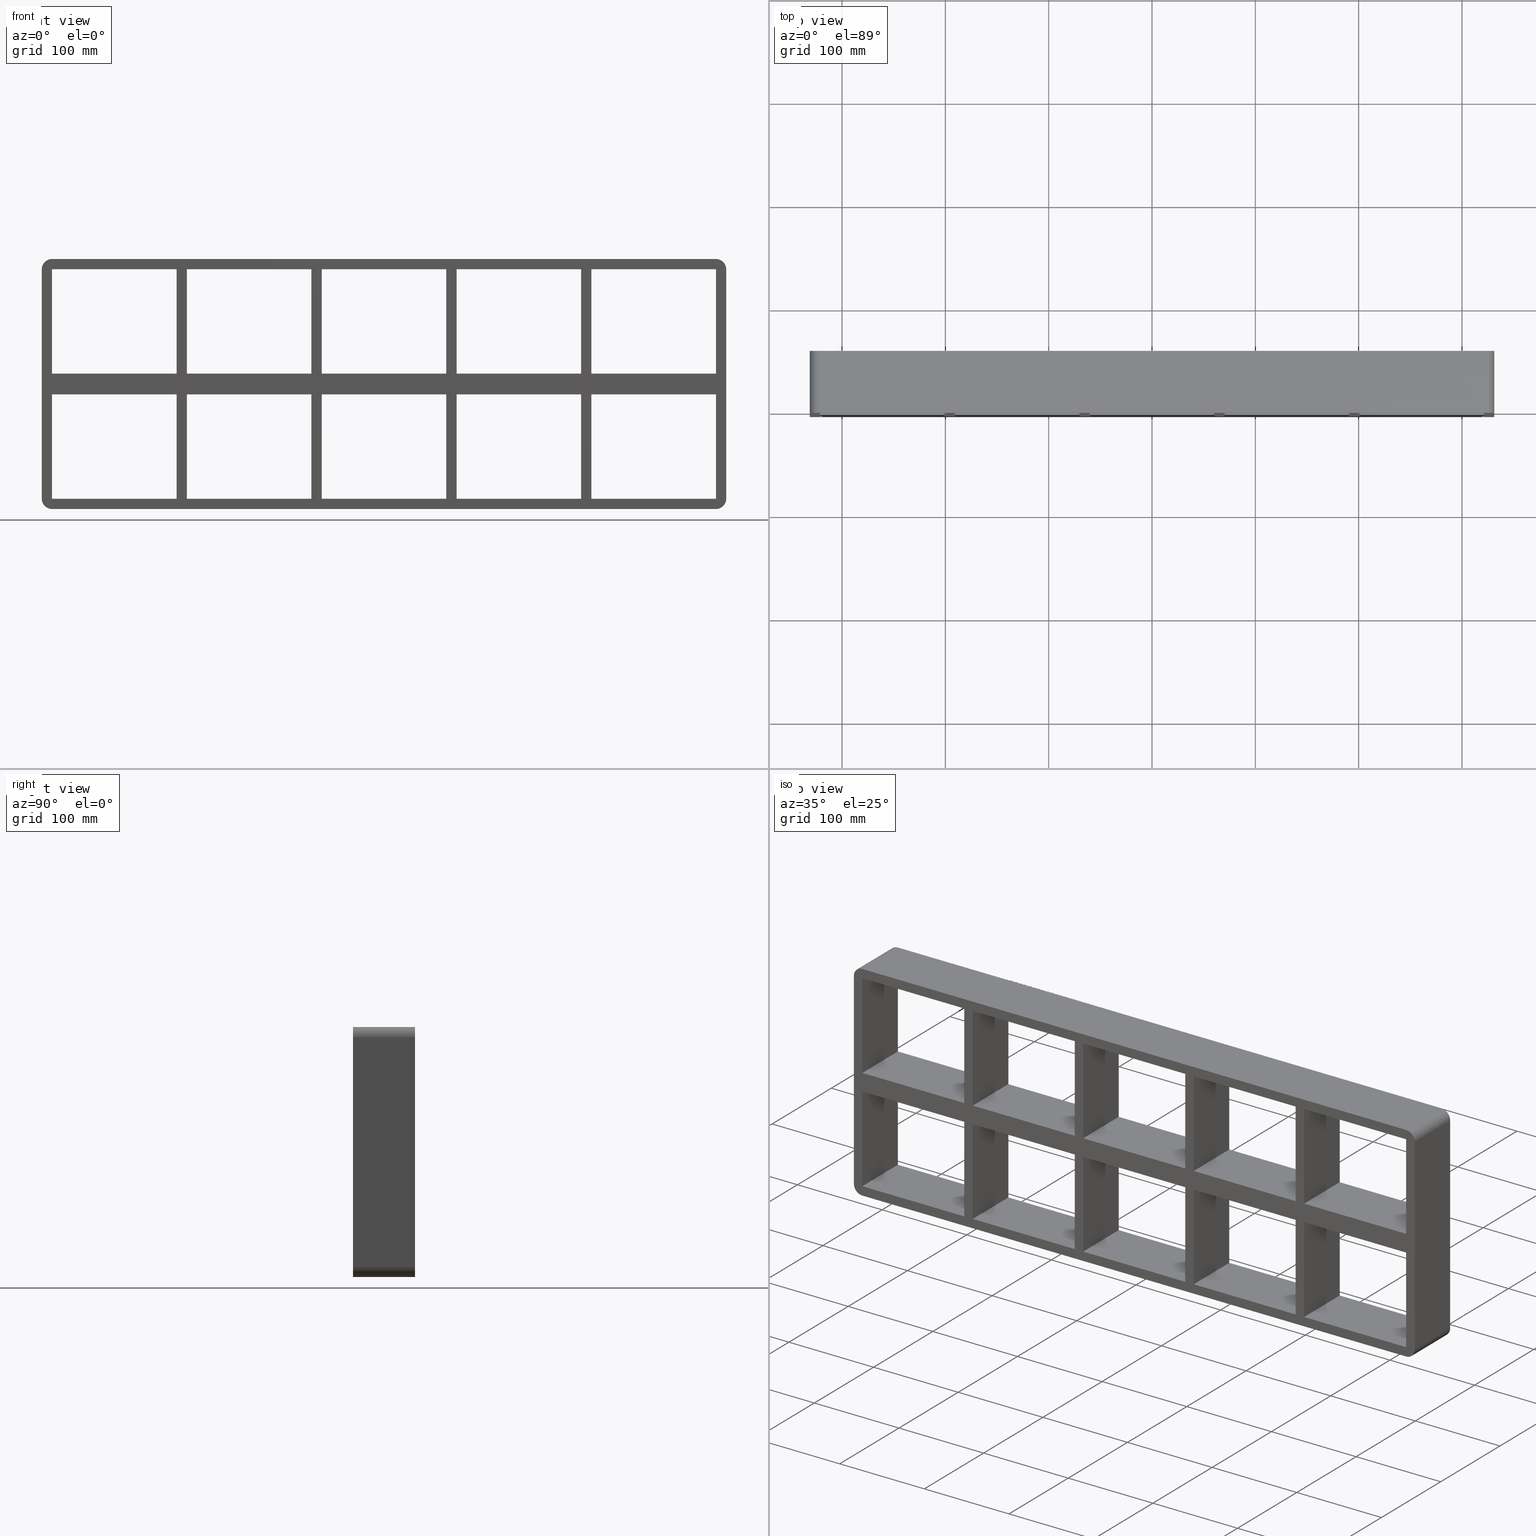
[diagram: canonical four-view strip — front | top / right | iso, engineering-drawing reading convention]
A machine part, canonical four-view strip (front | top / right | iso — engineering-drawing reading convention). The complete STEP part file that produces these views, byte-faithful:
ISO-10303-21;
HEADER;
/****************************************************************
 * Generated by software with PDElib inside                    *
 * PDElib Version v51a, created Wed 11/30/2011                  *
 * ITI Transcendata (http://www.transcendata.com/)              *
 ****************************************************************/
FILE_DESCRIPTION((''),'2;1');
FILE_NAME('C:\\RoxtecConfigurator\\CreatedFiles\\STEP\\S2+2X5.stp','2013-06-28T14:00:46',(''),(''),'Autodesk Inventor 2013','Autodesk Inventor 2013','');
FILE_SCHEMA(('AUTOMOTIVE_DESIGN { 1 0 10303 214 1 1 1 1 }'));
ENDSEC;
DATA;
#5=APPLICATION_CONTEXT('automotive design');
#6=APPLICATION_PROTOCOL_DEFINITION('International Standard','automotive_design',2001,#5);
#7=PRODUCT_CONTEXT('',#5,'mechanical');
#8=PRODUCT('roxtec S_SF_G','roxtec S_SF_G',$,(#7));
#9=PRODUCT_RELATED_PRODUCT_CATEGORY('part',$,(#8));
#10=PRODUCT_DEFINITION_FORMATION('',$,#8);
#11=PRODUCT_DEFINITION_CONTEXT('part definition',#5,'design');
#12=PRODUCT_DEFINITION('',$,#10,#11);
#18=(NAMED_UNIT(*)PLANE_ANGLE_UNIT()SI_UNIT($,.RADIAN.));
#19=DIMENSIONAL_EXPONENTS(0.0,0.0,0.0,0.0,0.0,0.0,0.0);
#20=PLANE_ANGLE_MEASURE_WITH_UNIT(PLANE_ANGLE_MEASURE(0.0174532925),#18);
#24=(CONVERSION_BASED_UNIT('DEGREE',#20)NAMED_UNIT(#19)PLANE_ANGLE_UNIT());
#28=(NAMED_UNIT(*)SI_UNIT($,.STERADIAN.)SOLID_ANGLE_UNIT());
#32=(LENGTH_UNIT()NAMED_UNIT(*)SI_UNIT(.MILLI.,.METRE.));
#34=UNCERTAINTY_MEASURE_WITH_UNIT(LENGTH_MEASURE(0.01),#32,'DISTANCE_ACCURACY_VALUE','');
#36=(GEOMETRIC_REPRESENTATION_CONTEXT(3)GLOBAL_UNCERTAINTY_ASSIGNED_CONTEXT((#34))GLOBAL_UNIT_ASSIGNED_CONTEXT((#24,#28,#32))REPRESENTATION_CONTEXT('None','None'));
#37=AXIS2_PLACEMENT_3D('',#38,#39,#40);
#38=CARTESIAN_POINT('',(0.0,0.0,0.0));
#39=DIRECTION('',(0.0,0.0,1.0));
#40=DIRECTION('',(1.0,0.0,0.0));
#41=SHAPE_REPRESENTATION('',(#37),#36);
#42=PRODUCT_DEFINITION_SHAPE('','',#12);
#43=SHAPE_DEFINITION_REPRESENTATION(#42,#41);
#49=(NAMED_UNIT(*)PLANE_ANGLE_UNIT()SI_UNIT($,.RADIAN.));
#50=DIMENSIONAL_EXPONENTS(0.0,0.0,0.0,0.0,0.0,0.0,0.0);
#51=PLANE_ANGLE_MEASURE_WITH_UNIT(PLANE_ANGLE_MEASURE(0.0174532925),#49);
#55=(CONVERSION_BASED_UNIT('DEGREE',#51)NAMED_UNIT(#50)PLANE_ANGLE_UNIT());
#59=(NAMED_UNIT(*)SI_UNIT($,.STERADIAN.)SOLID_ANGLE_UNIT());
#63=(LENGTH_UNIT()NAMED_UNIT(*)SI_UNIT(.MILLI.,.METRE.));
#65=UNCERTAINTY_MEASURE_WITH_UNIT(LENGTH_MEASURE(0.000001),#63,'DISTANCE_ACCURACY_VALUE','');
#67=(GEOMETRIC_REPRESENTATION_CONTEXT(3)GLOBAL_UNCERTAINTY_ASSIGNED_CONTEXT((#65))GLOBAL_UNIT_ASSIGNED_CONTEXT((#55,#59,#63))REPRESENTATION_CONTEXT('','3D'));
#68=CARTESIAN_POINT('',(190.74999999999875,-3.0,-111.00000000000001));
#69=DIRECTION('',(-1.0,0.0,0.0));
#70=DIRECTION('',(0.0,0.0,1.0));
#71=AXIS2_PLACEMENT_3D('',#68,#69,#70);
#72=PLANE('',#71);
#73=CARTESIAN_POINT('',(190.74999999999872,-3.0,10.0));
#74=VERTEX_POINT('',#73);
#75=CARTESIAN_POINT('',(190.74999999999872,57.0,10.0));
#76=VERTEX_POINT('',#75);
#77=CARTESIAN_POINT('',(190.74999999999875,-3.0,10.0));
#78=DIRECTION('',(0.0,1.0,0.0));
#79=VECTOR('',#78,60.0);
#80=LINE('',#77,#79);
#81=EDGE_CURVE('',#74,#76,#80,.T.);
#82=ORIENTED_EDGE('',*,*,#81,.F.);
#83=CARTESIAN_POINT('',(190.74999999999872,-3.0,111.00000000000001));
#84=VERTEX_POINT('',#83);
#85=CARTESIAN_POINT('',(190.74999999999872,-3.0,10.0));
#86=DIRECTION('',(0.0,0.0,1.0));
#87=VECTOR('',#86,101.00000000000001);
#88=LINE('',#85,#87);
#89=EDGE_CURVE('',#74,#84,#88,.T.);
#90=ORIENTED_EDGE('',*,*,#89,.T.);
#91=CARTESIAN_POINT('',(190.74999999999872,57.0,111.00000000000001));
#92=VERTEX_POINT('',#91);
#93=CARTESIAN_POINT('',(190.74999999999875,57.000000000000007,111.00000000000001));
#94=DIRECTION('',(0.0,-1.0,0.0));
#95=VECTOR('',#94,60.000000000000007);
#96=LINE('',#93,#95);
#97=EDGE_CURVE('',#92,#84,#96,.T.);
#98=ORIENTED_EDGE('',*,*,#97,.F.);
#99=CARTESIAN_POINT('',(190.74999999999872,57.0,10.0));
#100=DIRECTION('',(0.0,0.0,1.0));
#101=VECTOR('',#100,101.00000000000001);
#102=LINE('',#99,#101);
#103=EDGE_CURVE('',#76,#92,#102,.T.);
#104=ORIENTED_EDGE('',*,*,#103,.F.);
#105=EDGE_LOOP('',(#82,#90,#98,#104));
#106=FACE_OUTER_BOUND('',#105,.T.);
#107=ADVANCED_FACE('',(#106),#72,.T.);
#108=CARTESIAN_POINT('',(190.74999999999875,-3.0,-111.00000000000001));
#109=DIRECTION('',(-1.0,0.0,0.0));
#110=DIRECTION('',(0.0,0.0,1.0));
#111=AXIS2_PLACEMENT_3D('',#108,#109,#110);
#112=PLANE('',#111);
#113=CARTESIAN_POINT('',(190.74999999999875,57.0,-10.000000000009344));
#114=VERTEX_POINT('',#113);
#115=CARTESIAN_POINT('',(190.74999999999875,-3.0,-10.000000000009344));
#116=VERTEX_POINT('',#115);
#117=CARTESIAN_POINT('',(190.74999999999875,57.0,-10.000000000009353));
#118=DIRECTION('',(0.0,-1.0,0.0));
#119=VECTOR('',#118,60.0);
#120=LINE('',#117,#119);
#121=EDGE_CURVE('',#114,#116,#120,.T.);
#122=ORIENTED_EDGE('',*,*,#121,.F.);
#123=CARTESIAN_POINT('',(190.74999999999875,57.0,-111.00000000000001));
#124=VERTEX_POINT('',#123);
#125=CARTESIAN_POINT('',(190.74999999999875,57.0,-111.00000000000001));
#126=DIRECTION('',(0.0,0.0,1.0));
#127=VECTOR('',#126,100.99999999999068);
#128=LINE('',#125,#127);
#129=EDGE_CURVE('',#124,#114,#128,.T.);
#130=ORIENTED_EDGE('',*,*,#129,.F.);
#131=CARTESIAN_POINT('',(190.74999999999875,-3.0,-111.00000000000001));
#132=VERTEX_POINT('',#131);
#133=CARTESIAN_POINT('',(190.74999999999875,-3.0,-111.00000000000001));
#134=DIRECTION('',(0.0,1.0,0.0));
#135=VECTOR('',#134,60.000000000000007);
#136=LINE('',#133,#135);
#137=EDGE_CURVE('',#132,#124,#136,.T.);
#138=ORIENTED_EDGE('',*,*,#137,.F.);
#139=CARTESIAN_POINT('',(190.74999999999875,-3.0,-111.00000000000001));
#140=DIRECTION('',(0.0,0.0,1.0));
#141=VECTOR('',#140,100.99999999999068);
#142=LINE('',#139,#141);
#143=EDGE_CURVE('',#132,#116,#142,.T.);
#144=ORIENTED_EDGE('',*,*,#143,.T.);
#145=EDGE_LOOP('',(#122,#130,#138,#144));
#146=FACE_OUTER_BOUND('',#145,.T.);
#147=ADVANCED_FACE('',(#146),#112,.T.);
#148=CARTESIAN_POINT('',(200.74999999999278,-3.0,111.00000000000001));
#149=DIRECTION('',(1.0,0.0,0.0));
#150=DIRECTION('',(0.0,0.0,-1.0));
#151=AXIS2_PLACEMENT_3D('',#148,#149,#150);
#152=PLANE('',#151);
#153=CARTESIAN_POINT('',(200.74999999999278,57.0,10.0));
#154=VERTEX_POINT('',#153);
#155=CARTESIAN_POINT('',(200.74999999999278,-3.0,10.0));
#156=VERTEX_POINT('',#155);
#157=CARTESIAN_POINT('',(200.74999999999278,57.0,10.0));
#158=DIRECTION('',(0.0,-1.0,0.0));
#159=VECTOR('',#158,60.0);
#160=LINE('',#157,#159);
#161=EDGE_CURVE('',#154,#156,#160,.T.);
#162=ORIENTED_EDGE('',*,*,#161,.F.);
#163=CARTESIAN_POINT('',(200.74999999999278,57.0,111.00000000000001));
#164=VERTEX_POINT('',#163);
#165=CARTESIAN_POINT('',(200.74999999999278,57.0,111.00000000000001));
#166=DIRECTION('',(0.0,0.0,-1.0));
#167=VECTOR('',#166,101.00000000000001);
#168=LINE('',#165,#167);
#169=EDGE_CURVE('',#164,#154,#168,.T.);
#170=ORIENTED_EDGE('',*,*,#169,.F.);
#171=CARTESIAN_POINT('',(200.74999999999278,-3.0,111.00000000000001));
#172=VERTEX_POINT('',#171);
#173=CARTESIAN_POINT('',(200.74999999999278,-3.0,111.00000000000001));
#174=DIRECTION('',(0.0,1.0,0.0));
#175=VECTOR('',#174,60.000000000000007);
#176=LINE('',#173,#175);
#177=EDGE_CURVE('',#172,#164,#176,.T.);
#178=ORIENTED_EDGE('',*,*,#177,.F.);
#179=CARTESIAN_POINT('',(200.74999999999278,-3.0,111.00000000000001));
#180=DIRECTION('',(0.0,0.0,-1.0));
#181=VECTOR('',#180,101.00000000000001);
#182=LINE('',#179,#181);
#183=EDGE_CURVE('',#172,#156,#182,.T.);
#184=ORIENTED_EDGE('',*,*,#183,.T.);
#185=EDGE_LOOP('',(#162,#170,#178,#184));
#186=FACE_OUTER_BOUND('',#185,.T.);
#187=ADVANCED_FACE('',(#186),#152,.T.);
#188=CARTESIAN_POINT('',(200.74999999999278,-3.0,111.00000000000001));
#189=DIRECTION('',(1.0,0.0,0.0));
#190=DIRECTION('',(0.0,0.0,-1.0));
#191=AXIS2_PLACEMENT_3D('',#188,#189,#190);
#192=PLANE('',#191);
#193=CARTESIAN_POINT('',(200.74999999999278,-3.0,-10.000000000009344));
#194=VERTEX_POINT('',#193);
#195=CARTESIAN_POINT('',(200.74999999999278,57.0,-10.000000000009344));
#196=VERTEX_POINT('',#195);
#197=CARTESIAN_POINT('',(200.74999999999278,-3.0,-10.000000000009353));
#198=DIRECTION('',(0.0,1.0,0.0));
#199=VECTOR('',#198,60.0);
#200=LINE('',#197,#199);
#201=EDGE_CURVE('',#194,#196,#200,.T.);
#202=ORIENTED_EDGE('',*,*,#201,.F.);
#203=CARTESIAN_POINT('',(200.74999999999278,-3.0,-110.99999999998417));
#204=VERTEX_POINT('',#203);
#205=CARTESIAN_POINT('',(200.74999999999278,-3.0,-10.000000000009337));
#206=DIRECTION('',(0.0,0.0,-1.0));
#207=VECTOR('',#206,100.99999999997485);
#208=LINE('',#205,#207);
#209=EDGE_CURVE('',#194,#204,#208,.T.);
#210=ORIENTED_EDGE('',*,*,#209,.T.);
#211=CARTESIAN_POINT('',(200.74999999999278,57.0,-110.99999999998417));
#212=VERTEX_POINT('',#211);
#213=CARTESIAN_POINT('',(200.74999999999278,57.000000000000007,-111.00000000000001));
#214=DIRECTION('',(0.0,-1.0,0.0));
#215=VECTOR('',#214,60.000000000000007);
#216=LINE('',#213,#215);
#217=EDGE_CURVE('',#212,#204,#216,.T.);
#218=ORIENTED_EDGE('',*,*,#217,.F.);
#219=CARTESIAN_POINT('',(200.74999999999278,57.0,-10.000000000009337));
#220=DIRECTION('',(0.0,0.0,-1.0));
#221=VECTOR('',#220,100.99999999997485);
#222=LINE('',#219,#221);
#223=EDGE_CURVE('',#196,#212,#222,.T.);
#224=ORIENTED_EDGE('',*,*,#223,.F.);
#225=EDGE_LOOP('',(#202,#210,#218,#224));
#226=FACE_OUTER_BOUND('',#225,.T.);
#227=ADVANCED_FACE('',(#226),#192,.T.);
#228=CARTESIAN_POINT('',(60.249999999998707,-3.0,-111.00000000000001));
#229=DIRECTION('',(-1.0,0.0,0.0));
#230=DIRECTION('',(0.0,0.0,1.0));
#231=AXIS2_PLACEMENT_3D('',#228,#229,#230);
#232=PLANE('',#231);
#233=CARTESIAN_POINT('',(60.249999999998693,-3.0,10.0));
#234=VERTEX_POINT('',#233);
#235=CARTESIAN_POINT('',(60.249999999998693,57.0,10.0));
#236=VERTEX_POINT('',#235);
#237=CARTESIAN_POINT('',(60.2499999999987,-3.0,10.0));
#238=DIRECTION('',(0.0,1.0,0.0));
#239=VECTOR('',#238,60.0);
#240=LINE('',#237,#239);
#241=EDGE_CURVE('',#234,#236,#240,.T.);
#242=ORIENTED_EDGE('',*,*,#241,.F.);
#243=CARTESIAN_POINT('',(60.249999999998671,-3.0,111.00000000000001));
#244=VERTEX_POINT('',#243);
#245=CARTESIAN_POINT('',(60.249999999998685,-3.0,10.0));
#246=DIRECTION('',(0.0,0.0,1.0));
#247=VECTOR('',#246,101.00000000000001);
#248=LINE('',#245,#247);
#249=EDGE_CURVE('',#234,#244,#248,.T.);
#250=ORIENTED_EDGE('',*,*,#249,.T.);
#251=CARTESIAN_POINT('',(60.249999999998671,57.0,111.00000000000001));
#252=VERTEX_POINT('',#251);
#253=CARTESIAN_POINT('',(60.24999999999865,57.000000000000007,111.00000000000001));
#254=DIRECTION('',(0.0,-1.0,0.0));
#255=VECTOR('',#254,60.000000000000007);
#256=LINE('',#253,#255);
#257=EDGE_CURVE('',#252,#244,#256,.T.);
#258=ORIENTED_EDGE('',*,*,#257,.F.);
#259=CARTESIAN_POINT('',(60.249999999998685,57.0,10.0));
#260=DIRECTION('',(0.0,0.0,1.0));
#261=VECTOR('',#260,101.00000000000001);
#262=LINE('',#259,#261);
#263=EDGE_CURVE('',#236,#252,#262,.T.);
#264=ORIENTED_EDGE('',*,*,#263,.F.);
#265=EDGE_LOOP('',(#242,#250,#258,#264));
#266=FACE_OUTER_BOUND('',#265,.T.);
#267=ADVANCED_FACE('',(#266),#232,.T.);
#268=CARTESIAN_POINT('',(60.249999999998707,-3.0,-111.00000000000001));
#269=DIRECTION('',(-1.0,0.0,0.0));
#270=DIRECTION('',(0.0,0.0,1.0));
#271=AXIS2_PLACEMENT_3D('',#268,#269,#270);
#272=PLANE('',#271);
#273=CARTESIAN_POINT('',(60.249999999998693,57.0,-10.000000000009361));
#274=VERTEX_POINT('',#273);
#275=CARTESIAN_POINT('',(60.249999999998693,-3.0,-10.000000000009361));
#276=VERTEX_POINT('',#275);
#277=CARTESIAN_POINT('',(60.2499999999987,57.0,-10.000000000009361));
#278=DIRECTION('',(0.0,-1.0,0.0));
#279=VECTOR('',#278,60.0);
#280=LINE('',#277,#279);
#281=EDGE_CURVE('',#274,#276,#280,.T.);
#282=ORIENTED_EDGE('',*,*,#281,.F.);
#283=CARTESIAN_POINT('',(60.249999999998707,57.0,-111.00000000000001));
#284=VERTEX_POINT('',#283);
#285=CARTESIAN_POINT('',(60.249999999998707,57.0,-111.00000000000001));
#286=DIRECTION('',(0.0,0.0,1.0));
#287=VECTOR('',#286,100.99999999999065);
#288=LINE('',#285,#287);
#289=EDGE_CURVE('',#284,#274,#288,.T.);
#290=ORIENTED_EDGE('',*,*,#289,.F.);
#291=CARTESIAN_POINT('',(60.249999999998707,-3.0,-111.00000000000001));
#292=VERTEX_POINT('',#291);
#293=CARTESIAN_POINT('',(60.249999999998707,-3.0,-111.00000000000001));
#294=DIRECTION('',(0.0,1.0,0.0));
#295=VECTOR('',#294,60.000000000000007);
#296=LINE('',#293,#295);
#297=EDGE_CURVE('',#292,#284,#296,.T.);
#298=ORIENTED_EDGE('',*,*,#297,.F.);
#299=CARTESIAN_POINT('',(60.249999999998707,-3.0,-111.00000000000001));
#300=DIRECTION('',(0.0,0.0,1.0));
#301=VECTOR('',#300,100.99999999999065);
#302=LINE('',#299,#301);
#303=EDGE_CURVE('',#292,#276,#302,.T.);
#304=ORIENTED_EDGE('',*,*,#303,.T.);
#305=EDGE_LOOP('',(#282,#290,#298,#304));
#306=FACE_OUTER_BOUND('',#305,.T.);
#307=ADVANCED_FACE('',(#306),#272,.T.);
#308=CARTESIAN_POINT('',(70.249999999992738,-3.0,111.00000000000001));
#309=DIRECTION('',(1.0,0.0,0.0));
#310=DIRECTION('',(0.0,0.0,-1.0));
#311=AXIS2_PLACEMENT_3D('',#308,#309,#310);
#312=PLANE('',#311);
#313=CARTESIAN_POINT('',(70.249999999992738,57.0,10.0));
#314=VERTEX_POINT('',#313);
#315=CARTESIAN_POINT('',(70.249999999992738,-3.0,10.0));
#316=VERTEX_POINT('',#315);
#317=CARTESIAN_POINT('',(70.249999999992738,57.0,10.0));
#318=DIRECTION('',(0.0,-1.0,0.0));
#319=VECTOR('',#318,60.0);
#320=LINE('',#317,#319);
#321=EDGE_CURVE('',#314,#316,#320,.T.);
#322=ORIENTED_EDGE('',*,*,#321,.F.);
#323=CARTESIAN_POINT('',(70.249999999992738,57.0,111.00000000000001));
#324=VERTEX_POINT('',#323);
#325=CARTESIAN_POINT('',(70.249999999992738,57.0,111.00000000000001));
#326=DIRECTION('',(0.0,0.0,-1.0));
#327=VECTOR('',#326,101.00000000000001);
#328=LINE('',#325,#327);
#329=EDGE_CURVE('',#324,#314,#328,.T.);
#330=ORIENTED_EDGE('',*,*,#329,.F.);
#331=CARTESIAN_POINT('',(70.249999999992738,-3.0,111.00000000000001));
#332=VERTEX_POINT('',#331);
#333=CARTESIAN_POINT('',(70.249999999992738,-3.0,111.00000000000001));
#334=DIRECTION('',(0.0,1.0,0.0));
#335=VECTOR('',#334,60.000000000000007);
#336=LINE('',#333,#335);
#337=EDGE_CURVE('',#332,#324,#336,.T.);
#338=ORIENTED_EDGE('',*,*,#337,.F.);
#339=CARTESIAN_POINT('',(70.249999999992738,-3.0,111.00000000000001));
#340=DIRECTION('',(0.0,0.0,-1.0));
#341=VECTOR('',#340,101.00000000000001);
#342=LINE('',#339,#341);
#343=EDGE_CURVE('',#332,#316,#342,.T.);
#344=ORIENTED_EDGE('',*,*,#343,.T.);
#345=EDGE_LOOP('',(#322,#330,#338,#344));
#346=FACE_OUTER_BOUND('',#345,.T.);
#347=ADVANCED_FACE('',(#346),#312,.T.);
#348=CARTESIAN_POINT('',(70.249999999992738,-3.0,111.00000000000001));
#349=DIRECTION('',(1.0,0.0,0.0));
#350=DIRECTION('',(0.0,0.0,-1.0));
#351=AXIS2_PLACEMENT_3D('',#348,#349,#350);
#352=PLANE('',#351);
#353=CARTESIAN_POINT('',(70.249999999992738,-3.0,-10.000000000009361));
#354=VERTEX_POINT('',#353);
#355=CARTESIAN_POINT('',(70.249999999992738,57.0,-10.000000000009361));
#356=VERTEX_POINT('',#355);
#357=CARTESIAN_POINT('',(70.249999999992738,-3.0,-10.000000000009361));
#358=DIRECTION('',(0.0,1.0,0.0));
#359=VECTOR('',#358,60.0);
#360=LINE('',#357,#359);
#361=EDGE_CURVE('',#354,#356,#360,.T.);
#362=ORIENTED_EDGE('',*,*,#361,.F.);
#363=CARTESIAN_POINT('',(70.249999999992738,-3.0,-110.99999999998417));
#364=VERTEX_POINT('',#363);
#365=CARTESIAN_POINT('',(70.249999999992738,-3.0,-10.000000000009365));
#366=DIRECTION('',(0.0,0.0,-1.0));
#367=VECTOR('',#366,100.99999999997482);
#368=LINE('',#365,#367);
#369=EDGE_CURVE('',#354,#364,#368,.T.);
#370=ORIENTED_EDGE('',*,*,#369,.T.);
#371=CARTESIAN_POINT('',(70.249999999992738,57.0,-110.99999999998417));
#372=VERTEX_POINT('',#371);
#373=CARTESIAN_POINT('',(70.249999999992738,57.000000000000007,-111.00000000000001));
#374=DIRECTION('',(0.0,-1.0,0.0));
#375=VECTOR('',#374,60.000000000000007);
#376=LINE('',#373,#375);
#377=EDGE_CURVE('',#372,#364,#376,.T.);
#378=ORIENTED_EDGE('',*,*,#377,.F.);
#379=CARTESIAN_POINT('',(70.249999999992738,57.0,-10.000000000009365));
#380=DIRECTION('',(0.0,0.0,-1.0));
#381=VECTOR('',#380,100.99999999997482);
#382=LINE('',#379,#381);
#383=EDGE_CURVE('',#356,#372,#382,.T.);
#384=ORIENTED_EDGE('',*,*,#383,.F.);
#385=EDGE_LOOP('',(#362,#370,#378,#384));
#386=FACE_OUTER_BOUND('',#385,.T.);
#387=ADVANCED_FACE('',(#386),#352,.T.);
#388=CARTESIAN_POINT('',(-70.250000000001307,-3.0,-111.00000000000001));
#389=DIRECTION('',(-1.0,0.0,0.0));
#390=DIRECTION('',(0.0,0.0,1.0));
#391=AXIS2_PLACEMENT_3D('',#388,#389,#390);
#392=PLANE('',#391);
#393=CARTESIAN_POINT('',(-70.250000000001322,-3.0,10.0));
#394=VERTEX_POINT('',#393);
#395=CARTESIAN_POINT('',(-70.250000000001322,57.0,10.0));
#396=VERTEX_POINT('',#395);
#397=CARTESIAN_POINT('',(-70.250000000001307,-3.0,10.0));
#398=DIRECTION('',(0.0,1.0,0.0));
#399=VECTOR('',#398,60.0);
#400=LINE('',#397,#399);
#401=EDGE_CURVE('',#394,#396,#400,.T.);
#402=ORIENTED_EDGE('',*,*,#401,.F.);
#403=CARTESIAN_POINT('',(-70.250000000001336,-3.0,111.00000000000001));
#404=VERTEX_POINT('',#403);
#405=CARTESIAN_POINT('',(-70.250000000001322,-3.0,10.0));
#406=DIRECTION('',(0.0,0.0,1.0));
#407=VECTOR('',#406,101.00000000000001);
#408=LINE('',#405,#407);
#409=EDGE_CURVE('',#394,#404,#408,.T.);
#410=ORIENTED_EDGE('',*,*,#409,.T.);
#411=CARTESIAN_POINT('',(-70.250000000001336,57.0,111.00000000000001));
#412=VERTEX_POINT('',#411);
#413=CARTESIAN_POINT('',(-70.25000000000135,57.000000000000007,111.00000000000001));
#414=DIRECTION('',(0.0,-1.0,0.0));
#415=VECTOR('',#414,60.000000000000007);
#416=LINE('',#413,#415);
#417=EDGE_CURVE('',#412,#404,#416,.T.);
#418=ORIENTED_EDGE('',*,*,#417,.F.);
#419=CARTESIAN_POINT('',(-70.250000000001322,57.0,10.0));
#420=DIRECTION('',(0.0,0.0,1.0));
#421=VECTOR('',#420,101.00000000000001);
#422=LINE('',#419,#421);
#423=EDGE_CURVE('',#396,#412,#422,.T.);
#424=ORIENTED_EDGE('',*,*,#423,.F.);
#425=EDGE_LOOP('',(#402,#410,#418,#424));
#426=FACE_OUTER_BOUND('',#425,.T.);
#427=ADVANCED_FACE('',(#426),#392,.T.);
#428=CARTESIAN_POINT('',(-70.250000000001307,-3.0,-111.00000000000001));
#429=DIRECTION('',(-1.0,0.0,0.0));
#430=DIRECTION('',(0.0,0.0,1.0));
#431=AXIS2_PLACEMENT_3D('',#428,#429,#430);
#432=PLANE('',#431);
#433=CARTESIAN_POINT('',(-70.250000000001322,57.0,-10.000000000009361));
#434=VERTEX_POINT('',#433);
#435=CARTESIAN_POINT('',(-70.250000000001322,-3.0,-10.000000000009361));
#436=VERTEX_POINT('',#435);
#437=CARTESIAN_POINT('',(-70.250000000001322,57.0,-10.000000000009361));
#438=DIRECTION('',(0.0,-1.0,0.0));
#439=VECTOR('',#438,60.0);
#440=LINE('',#437,#439);
#441=EDGE_CURVE('',#434,#436,#440,.T.);
#442=ORIENTED_EDGE('',*,*,#441,.F.);
#443=CARTESIAN_POINT('',(-70.250000000001307,57.0,-111.00000000000001));
#444=VERTEX_POINT('',#443);
#445=CARTESIAN_POINT('',(-70.250000000001307,57.0,-111.00000000000001));
#446=DIRECTION('',(0.0,0.0,1.0));
#447=VECTOR('',#446,100.99999999999065);
#448=LINE('',#445,#447);
#449=EDGE_CURVE('',#444,#434,#448,.T.);
#450=ORIENTED_EDGE('',*,*,#449,.F.);
#451=CARTESIAN_POINT('',(-70.250000000001307,-3.0,-111.00000000000001));
#452=VERTEX_POINT('',#451);
#453=CARTESIAN_POINT('',(-70.250000000001322,-3.0,-111.00000000000001));
#454=DIRECTION('',(0.0,1.0,0.0));
#455=VECTOR('',#454,60.000000000000007);
#456=LINE('',#453,#455);
#457=EDGE_CURVE('',#452,#444,#456,.T.);
#458=ORIENTED_EDGE('',*,*,#457,.F.);
#459=CARTESIAN_POINT('',(-70.250000000001307,-3.0,-111.00000000000001));
#460=DIRECTION('',(0.0,0.0,1.0));
#461=VECTOR('',#460,100.99999999999065);
#462=LINE('',#459,#461);
#463=EDGE_CURVE('',#452,#436,#462,.T.);
#464=ORIENTED_EDGE('',*,*,#463,.T.);
#465=EDGE_LOOP('',(#442,#450,#458,#464));
#466=FACE_OUTER_BOUND('',#465,.T.);
#467=ADVANCED_FACE('',(#466),#432,.T.);
#468=CARTESIAN_POINT('',(-60.250000000007269,-3.0,111.00000000000001));
#469=DIRECTION('',(1.0,0.0,0.0));
#470=DIRECTION('',(0.0,0.0,-1.0));
#471=AXIS2_PLACEMENT_3D('',#468,#469,#470);
#472=PLANE('',#471);
#473=CARTESIAN_POINT('',(-60.250000000007269,57.0,10.0));
#474=VERTEX_POINT('',#473);
#475=CARTESIAN_POINT('',(-60.250000000007269,-3.0,10.0));
#476=VERTEX_POINT('',#475);
#477=CARTESIAN_POINT('',(-60.250000000007248,57.0,10.0));
#478=DIRECTION('',(0.0,-1.0,0.0));
#479=VECTOR('',#478,60.0);
#480=LINE('',#477,#479);
#481=EDGE_CURVE('',#474,#476,#480,.T.);
#482=ORIENTED_EDGE('',*,*,#481,.F.);
#483=CARTESIAN_POINT('',(-60.250000000007269,57.0,111.00000000000001));
#484=VERTEX_POINT('',#483);
#485=CARTESIAN_POINT('',(-60.250000000007269,57.0,111.00000000000001));
#486=DIRECTION('',(0.0,0.0,-1.0));
#487=VECTOR('',#486,101.00000000000001);
#488=LINE('',#485,#487);
#489=EDGE_CURVE('',#484,#474,#488,.T.);
#490=ORIENTED_EDGE('',*,*,#489,.F.);
#491=CARTESIAN_POINT('',(-60.250000000007269,-3.0,111.00000000000001));
#492=VERTEX_POINT('',#491);
#493=CARTESIAN_POINT('',(-60.25000000000729,-3.0,111.00000000000001));
#494=DIRECTION('',(0.0,1.0,0.0));
#495=VECTOR('',#494,60.000000000000007);
#496=LINE('',#493,#495);
#497=EDGE_CURVE('',#492,#484,#496,.T.);
#498=ORIENTED_EDGE('',*,*,#497,.F.);
#499=CARTESIAN_POINT('',(-60.250000000007269,-3.0,111.00000000000001));
#500=DIRECTION('',(0.0,0.0,-1.0));
#501=VECTOR('',#500,101.00000000000001);
#502=LINE('',#499,#501);
#503=EDGE_CURVE('',#492,#476,#502,.T.);
#504=ORIENTED_EDGE('',*,*,#503,.T.);
#505=EDGE_LOOP('',(#482,#490,#498,#504));
#506=FACE_OUTER_BOUND('',#505,.T.);
#507=ADVANCED_FACE('',(#506),#472,.T.);
#508=CARTESIAN_POINT('',(-60.250000000007269,-3.0,111.00000000000001));
#509=DIRECTION('',(1.0,0.0,0.0));
#510=DIRECTION('',(0.0,0.0,-1.0));
#511=AXIS2_PLACEMENT_3D('',#508,#509,#510);
#512=PLANE('',#511);
#513=CARTESIAN_POINT('',(-60.250000000007269,-3.0,-10.000000000009361));
#514=VERTEX_POINT('',#513);
#515=CARTESIAN_POINT('',(-60.250000000007269,57.0,-10.000000000009361));
#516=VERTEX_POINT('',#515);
#517=CARTESIAN_POINT('',(-60.25000000000729,-3.0,-10.000000000009361));
#518=DIRECTION('',(0.0,1.0,0.0));
#519=VECTOR('',#518,60.0);
#520=LINE('',#517,#519);
#521=EDGE_CURVE('',#514,#516,#520,.T.);
#522=ORIENTED_EDGE('',*,*,#521,.F.);
#523=CARTESIAN_POINT('',(-60.250000000007269,-3.0,-110.99999999998417));
#524=VERTEX_POINT('',#523);
#525=CARTESIAN_POINT('',(-60.250000000007269,-3.0,-10.000000000009365));
#526=DIRECTION('',(0.0,0.0,-1.0));
#527=VECTOR('',#526,100.99999999997482);
#528=LINE('',#525,#527);
#529=EDGE_CURVE('',#514,#524,#528,.T.);
#530=ORIENTED_EDGE('',*,*,#529,.T.);
#531=CARTESIAN_POINT('',(-60.250000000007269,57.0,-110.99999999998417));
#532=VERTEX_POINT('',#531);
#533=CARTESIAN_POINT('',(-60.25000000000729,57.000000000000007,-111.00000000000001));
#534=DIRECTION('',(0.0,-1.0,0.0));
#535=VECTOR('',#534,60.000000000000007);
#536=LINE('',#533,#535);
#537=EDGE_CURVE('',#532,#524,#536,.T.);
#538=ORIENTED_EDGE('',*,*,#537,.F.);
#539=CARTESIAN_POINT('',(-60.250000000007269,57.0,-10.000000000009365));
#540=DIRECTION('',(0.0,0.0,-1.0));
#541=VECTOR('',#540,100.99999999997482);
#542=LINE('',#539,#541);
#543=EDGE_CURVE('',#516,#532,#542,.T.);
#544=ORIENTED_EDGE('',*,*,#543,.F.);
#545=EDGE_LOOP('',(#522,#530,#538,#544));
#546=FACE_OUTER_BOUND('',#545,.T.);
#547=ADVANCED_FACE('',(#546),#512,.T.);
#548=CARTESIAN_POINT('',(321.25,0.0,-111.00000000000001));
#549=DIRECTION('',(0.0,0.0,-1.0));
#550=DIRECTION('',(-1.0,0.0,0.0));
#551=AXIS2_PLACEMENT_3D('',#548,#549,#550);
#552=PLANE('',#551);
#553=ORIENTED_EDGE('',*,*,#457,.T.);
#554=CARTESIAN_POINT('',(-190.75000000000728,57.0,-110.99999999998417));
#555=VERTEX_POINT('',#554);
#556=CARTESIAN_POINT('',(-190.75000000000728,57.0,-111.00000000000001));
#557=DIRECTION('',(1.0,0.0,0.0));
#558=VECTOR('',#557,120.50000000000597);
#559=LINE('',#556,#558);
#560=EDGE_CURVE('',#555,#444,#559,.T.);
#561=ORIENTED_EDGE('',*,*,#560,.F.);
#562=CARTESIAN_POINT('',(-190.75000000000728,-3.0,-110.99999999998417));
#563=VERTEX_POINT('',#562);
#564=CARTESIAN_POINT('',(-190.75000000000728,57.000000000000007,-111.00000000000001));
#565=DIRECTION('',(0.0,-1.0,0.0));
#566=VECTOR('',#565,60.000000000000007);
#567=LINE('',#564,#566);
#568=EDGE_CURVE('',#555,#563,#567,.T.);
#569=ORIENTED_EDGE('',*,*,#568,.T.);
#570=CARTESIAN_POINT('',(-70.250000000001307,-3.0,-111.00000000000001));
#571=DIRECTION('',(-1.0,0.0,0.0));
#572=VECTOR('',#571,120.50000000000597);
#573=LINE('',#570,#572);
#574=EDGE_CURVE('',#452,#563,#573,.T.);
#575=ORIENTED_EDGE('',*,*,#574,.F.);
#576=EDGE_LOOP('',(#553,#561,#569,#575));
#577=FACE_OUTER_BOUND('',#576,.T.);
#578=ADVANCED_FACE('',(#577),#552,.F.);
#579=CARTESIAN_POINT('',(321.25,0.0,-111.00000000000001));
#580=DIRECTION('',(0.0,0.0,-1.0));
#581=DIRECTION('',(-1.0,0.0,0.0));
#582=AXIS2_PLACEMENT_3D('',#579,#580,#581);
#583=PLANE('',#582);
#584=ORIENTED_EDGE('',*,*,#297,.T.);
#585=CARTESIAN_POINT('',(-60.250000000007276,57.0,-111.00000000000001));
#586=DIRECTION('',(1.0,0.0,0.0));
#587=VECTOR('',#586,120.50000000000598);
#588=LINE('',#585,#587);
#589=EDGE_CURVE('',#532,#284,#588,.T.);
#590=ORIENTED_EDGE('',*,*,#589,.F.);
#591=ORIENTED_EDGE('',*,*,#537,.T.);
#592=CARTESIAN_POINT('',(60.249999999998707,-3.0,-111.00000000000001));
#593=DIRECTION('',(-1.0,0.0,0.0));
#594=VECTOR('',#593,120.50000000000598);
#595=LINE('',#592,#594);
#596=EDGE_CURVE('',#292,#524,#595,.T.);
#597=ORIENTED_EDGE('',*,*,#596,.F.);
#598=EDGE_LOOP('',(#584,#590,#591,#597));
#599=FACE_OUTER_BOUND('',#598,.T.);
#600=ADVANCED_FACE('',(#599),#583,.F.);
#601=CARTESIAN_POINT('',(321.25,0.0,-111.00000000000001));
#602=DIRECTION('',(0.0,0.0,-1.0));
#603=DIRECTION('',(-1.0,0.0,0.0));
#604=AXIS2_PLACEMENT_3D('',#601,#602,#603);
#605=PLANE('',#604);
#606=ORIENTED_EDGE('',*,*,#137,.T.);
#607=CARTESIAN_POINT('',(70.249999999992738,57.0,-111.00000000000001));
#608=DIRECTION('',(1.0,0.0,0.0));
#609=VECTOR('',#608,120.50000000000601);
#610=LINE('',#607,#609);
#611=EDGE_CURVE('',#372,#124,#610,.T.);
#612=ORIENTED_EDGE('',*,*,#611,.F.);
#613=ORIENTED_EDGE('',*,*,#377,.T.);
#614=CARTESIAN_POINT('',(190.74999999999875,-3.0,-111.00000000000001));
#615=DIRECTION('',(-1.0,0.0,0.0));
#616=VECTOR('',#615,120.50000000000601);
#617=LINE('',#614,#616);
#618=EDGE_CURVE('',#132,#364,#617,.T.);
#619=ORIENTED_EDGE('',*,*,#618,.F.);
#620=EDGE_LOOP('',(#606,#612,#613,#619));
#621=FACE_OUTER_BOUND('',#620,.T.);
#622=ADVANCED_FACE('',(#621),#605,.F.);
#623=CARTESIAN_POINT('',(321.25,0.0,-111.00000000000001));
#624=DIRECTION('',(0.0,0.0,-1.0));
#625=DIRECTION('',(-1.0,0.0,0.0));
#626=AXIS2_PLACEMENT_3D('',#623,#624,#625);
#627=PLANE('',#626);
#628=ORIENTED_EDGE('',*,*,#217,.T.);
#629=CARTESIAN_POINT('',(321.25,-3.0,-111.00000000000001));
#630=VERTEX_POINT('',#629);
#631=CARTESIAN_POINT('',(321.25,-3.0,-111.00000000000001));
#632=DIRECTION('',(-1.0,0.0,0.0));
#633=VECTOR('',#632,120.50000000000722);
#634=LINE('',#631,#633);
#635=EDGE_CURVE('',#630,#204,#634,.T.);
#636=ORIENTED_EDGE('',*,*,#635,.F.);
#637=CARTESIAN_POINT('',(321.25,57.0,-111.00000000000001));
#638=VERTEX_POINT('',#637);
#639=CARTESIAN_POINT('',(321.25,57.0,-111.00000000000001));
#640=DIRECTION('',(0.0,-1.0,0.0));
#641=VECTOR('',#640,60.0);
#642=LINE('',#639,#641);
#643=EDGE_CURVE('',#638,#630,#642,.T.);
#644=ORIENTED_EDGE('',*,*,#643,.F.);
#645=CARTESIAN_POINT('',(200.74999999999278,57.0,-111.00000000000001));
#646=DIRECTION('',(1.0,0.0,0.0));
#647=VECTOR('',#646,120.50000000000722);
#648=LINE('',#645,#647);
#649=EDGE_CURVE('',#212,#638,#648,.T.);
#650=ORIENTED_EDGE('',*,*,#649,.F.);
#651=EDGE_LOOP('',(#628,#636,#644,#650));
#652=FACE_OUTER_BOUND('',#651,.T.);
#653=ADVANCED_FACE('',(#652),#627,.F.);
#654=CARTESIAN_POINT('',(0.0,-3.0,0.0));
#655=DIRECTION('',(0.0,1.0,0.0));
#656=DIRECTION('',(0.0,0.0,1.0));
#657=AXIS2_PLACEMENT_3D('',#654,#655,#656);
#658=PLANE('',#657);
#659=CARTESIAN_POINT('',(331.25,-3.0,-111.00000000000001));
#660=VERTEX_POINT('',#659);
#661=CARTESIAN_POINT('',(321.25,-3.0,-121.00000000000001));
#662=VERTEX_POINT('',#661);
#663=CARTESIAN_POINT('',(321.25,-3.0,-111.00000000000001));
#664=DIRECTION('',(0.0,1.0,0.0));
#665=DIRECTION('',(0.707106781186547,0.0,-0.707106781186547));
#666=AXIS2_PLACEMENT_3D('',#663,#664,#665);
#667=CIRCLE('',#666,9.999999999999998);
#668=EDGE_CURVE('',#660,#662,#667,.T.);
#669=ORIENTED_EDGE('',*,*,#668,.F.);
#670=CARTESIAN_POINT('',(331.25,-3.0,111.00000000000001));
#671=VERTEX_POINT('',#670);
#672=CARTESIAN_POINT('',(331.25,-3.0,-111.00000000000001));
#673=DIRECTION('',(0.0,0.0,1.0));
#674=VECTOR('',#673,222.00000000000003);
#675=LINE('',#672,#674);
#676=EDGE_CURVE('',#660,#671,#675,.T.);
#677=ORIENTED_EDGE('',*,*,#676,.T.);
#678=CARTESIAN_POINT('',(321.25,-3.0,121.00000000000001));
#679=VERTEX_POINT('',#678);
#680=CARTESIAN_POINT('',(321.25,-3.0,111.00000000000001));
#681=DIRECTION('',(0.0,1.0,0.0));
#682=DIRECTION('',(0.707106781186547,0.0,0.707106781186547));
#683=AXIS2_PLACEMENT_3D('',#680,#681,#682);
#684=CIRCLE('',#683,9.999999999999998);
#685=EDGE_CURVE('',#679,#671,#684,.T.);
#686=ORIENTED_EDGE('',*,*,#685,.F.);
#687=CARTESIAN_POINT('',(-321.25,-3.0,121.00000000000001));
#688=VERTEX_POINT('',#687);
#689=CARTESIAN_POINT('',(321.25,-3.0,121.00000000000001));
#690=DIRECTION('',(-1.0,0.0,0.0));
#691=VECTOR('',#690,642.5);
#692=LINE('',#689,#691);
#693=EDGE_CURVE('',#679,#688,#692,.T.);
#694=ORIENTED_EDGE('',*,*,#693,.T.);
#695=CARTESIAN_POINT('',(-331.25,-3.0,111.00000000000001));
#696=VERTEX_POINT('',#695);
#697=CARTESIAN_POINT('',(-321.25,-3.0,111.00000000000001));
#698=DIRECTION('',(0.0,1.0,0.0));
#699=DIRECTION('',(-0.707106781186547,0.0,0.707106781186547));
#700=AXIS2_PLACEMENT_3D('',#697,#698,#699);
#701=CIRCLE('',#700,9.999999999999998);
#702=EDGE_CURVE('',#696,#688,#701,.T.);
#703=ORIENTED_EDGE('',*,*,#702,.F.);
#704=CARTESIAN_POINT('',(-331.25,-3.0,-111.00000000000001));
#705=VERTEX_POINT('',#704);
#706=CARTESIAN_POINT('',(-331.25,-3.0,111.00000000000001));
#707=DIRECTION('',(0.0,0.0,-1.0));
#708=VECTOR('',#707,222.00000000000003);
#709=LINE('',#706,#708);
#710=EDGE_CURVE('',#696,#705,#709,.T.);
#711=ORIENTED_EDGE('',*,*,#710,.T.);
#712=CARTESIAN_POINT('',(-321.25,-3.0,-121.00000000000001));
#713=VERTEX_POINT('',#712);
#714=CARTESIAN_POINT('',(-321.25,-3.0,-111.00000000000001));
#715=DIRECTION('',(0.0,1.0,0.0));
#716=DIRECTION('',(-0.707106781186547,0.0,-0.707106781186547));
#717=AXIS2_PLACEMENT_3D('',#714,#715,#716);
#718=CIRCLE('',#717,9.999999999999998);
#719=EDGE_CURVE('',#713,#705,#718,.T.);
#720=ORIENTED_EDGE('',*,*,#719,.F.);
#721=CARTESIAN_POINT('',(-321.25,-3.0,-121.00000000000001));
#722=DIRECTION('',(1.0,0.0,0.0));
#723=VECTOR('',#722,642.5);
#724=LINE('',#721,#723);
#725=EDGE_CURVE('',#713,#662,#724,.T.);
#726=ORIENTED_EDGE('',*,*,#725,.T.);
#727=EDGE_LOOP('',(#669,#677,#686,#694,#703,#711,#720,#726));
#728=FACE_OUTER_BOUND('',#727,.T.);
#729=ORIENTED_EDGE('',*,*,#618,.T.);
#730=ORIENTED_EDGE('',*,*,#369,.F.);
#731=CARTESIAN_POINT('',(190.74999999999875,-3.0,-10.000000000009351));
#732=DIRECTION('',(-1.0,0.0,0.0));
#733=VECTOR('',#732,120.50000000000603);
#734=LINE('',#731,#733);
#735=EDGE_CURVE('',#116,#354,#734,.T.);
#736=ORIENTED_EDGE('',*,*,#735,.F.);
#737=ORIENTED_EDGE('',*,*,#143,.F.);
#738=EDGE_LOOP('',(#729,#730,#736,#737));
#739=FACE_BOUND('',#738,.T.);
#740=CARTESIAN_POINT('',(70.249999999992724,-3.0,10.0));
#741=DIRECTION('',(1.0,0.0,0.0));
#742=VECTOR('',#741,120.50000000000591);
#743=LINE('',#740,#742);
#744=EDGE_CURVE('',#316,#74,#743,.T.);
#745=ORIENTED_EDGE('',*,*,#744,.F.);
#746=ORIENTED_EDGE('',*,*,#343,.F.);
#747=CARTESIAN_POINT('',(70.249999999992724,-3.0,111.00000000000001));
#748=DIRECTION('',(1.0,0.0,0.0));
#749=VECTOR('',#748,120.50000000000603);
#750=LINE('',#747,#749);
#751=EDGE_CURVE('',#332,#84,#750,.T.);
#752=ORIENTED_EDGE('',*,*,#751,.T.);
#753=ORIENTED_EDGE('',*,*,#89,.F.);
#754=EDGE_LOOP('',(#745,#746,#752,#753));
#755=FACE_BOUND('',#754,.T.);
#756=ORIENTED_EDGE('',*,*,#596,.T.);
#757=ORIENTED_EDGE('',*,*,#529,.F.);
#758=CARTESIAN_POINT('',(60.249999999998693,-3.0,-10.000000000009358));
#759=DIRECTION('',(-1.0,0.0,0.0));
#760=VECTOR('',#759,120.50000000000597);
#761=LINE('',#758,#760);
#762=EDGE_CURVE('',#276,#514,#761,.T.);
#763=ORIENTED_EDGE('',*,*,#762,.F.);
#764=ORIENTED_EDGE('',*,*,#303,.F.);
#765=EDGE_LOOP('',(#756,#757,#763,#764));
#766=FACE_BOUND('',#765,.T.);
#767=CARTESIAN_POINT('',(-60.250000000007276,-3.0,10.0));
#768=DIRECTION('',(1.0,0.0,0.0));
#769=VECTOR('',#768,120.50000000000597);
#770=LINE('',#767,#769);
#771=EDGE_CURVE('',#476,#234,#770,.T.);
#772=ORIENTED_EDGE('',*,*,#771,.F.);
#773=ORIENTED_EDGE('',*,*,#503,.F.);
#774=CARTESIAN_POINT('',(-60.250000000007276,-3.0,111.00000000000001));
#775=DIRECTION('',(1.0,0.0,0.0));
#776=VECTOR('',#775,120.50000000000594);
#777=LINE('',#774,#776);
#778=EDGE_CURVE('',#492,#244,#777,.T.);
#779=ORIENTED_EDGE('',*,*,#778,.T.);
#780=ORIENTED_EDGE('',*,*,#249,.F.);
#781=EDGE_LOOP('',(#772,#773,#779,#780));
#782=FACE_BOUND('',#781,.T.);
#783=ORIENTED_EDGE('',*,*,#574,.T.);
#784=CARTESIAN_POINT('',(-190.75000000000728,-3.0,-10.000000000009372));
#785=VERTEX_POINT('',#784);
#786=CARTESIAN_POINT('',(-190.75000000000728,-3.0,-10.000000000009379));
#787=DIRECTION('',(0.0,0.0,-1.0));
#788=VECTOR('',#787,100.9999999999748);
#789=LINE('',#786,#788);
#790=EDGE_CURVE('',#785,#563,#789,.T.);
#791=ORIENTED_EDGE('',*,*,#790,.F.);
#792=CARTESIAN_POINT('',(-70.250000000001364,-3.0,-10.000000000009365));
#793=DIRECTION('',(-1.0,0.0,0.0));
#794=VECTOR('',#793,120.50000000000591);
#795=LINE('',#792,#794);
#796=EDGE_CURVE('',#436,#785,#795,.T.);
#797=ORIENTED_EDGE('',*,*,#796,.F.);
#798=ORIENTED_EDGE('',*,*,#463,.F.);
#799=EDGE_LOOP('',(#783,#791,#797,#798));
#800=FACE_BOUND('',#799,.T.);
#801=CARTESIAN_POINT('',(-190.75000000000728,-3.0,10.0));
#802=VERTEX_POINT('',#801);
#803=CARTESIAN_POINT('',(-190.75000000000728,-3.0,10.0));
#804=DIRECTION('',(1.0,0.0,0.0));
#805=VECTOR('',#804,120.50000000000591);
#806=LINE('',#803,#805);
#807=EDGE_CURVE('',#802,#394,#806,.T.);
#808=ORIENTED_EDGE('',*,*,#807,.F.);
#809=CARTESIAN_POINT('',(-190.75000000000728,-3.0,111.00000000000001));
#810=VERTEX_POINT('',#809);
#811=CARTESIAN_POINT('',(-190.75000000000728,-3.0,111.00000000000001));
#812=DIRECTION('',(0.0,0.0,-1.0));
#813=VECTOR('',#812,101.00000000000001);
#814=LINE('',#811,#813);
#815=EDGE_CURVE('',#810,#802,#814,.T.);
#816=ORIENTED_EDGE('',*,*,#815,.F.);
#817=CARTESIAN_POINT('',(-190.75000000000728,-3.0,111.00000000000001));
#818=DIRECTION('',(1.0,0.0,0.0));
#819=VECTOR('',#818,120.50000000000594);
#820=LINE('',#817,#819);
#821=EDGE_CURVE('',#810,#404,#820,.T.);
#822=ORIENTED_EDGE('',*,*,#821,.T.);
#823=ORIENTED_EDGE('',*,*,#409,.F.);
#824=EDGE_LOOP('',(#808,#816,#822,#823));
#825=FACE_BOUND('',#824,.T.);
#826=ORIENTED_EDGE('',*,*,#183,.F.);
#827=CARTESIAN_POINT('',(321.25,-3.0,111.00000000000001));
#828=VERTEX_POINT('',#827);
#829=CARTESIAN_POINT('',(200.74999999999278,-3.0,111.00000000000001));
#830=DIRECTION('',(1.0,0.0,0.0));
#831=VECTOR('',#830,120.50000000000722);
#832=LINE('',#829,#831);
#833=EDGE_CURVE('',#172,#828,#832,.T.);
#834=ORIENTED_EDGE('',*,*,#833,.T.);
#835=CARTESIAN_POINT('',(321.25,-3.0,10.0));
#836=VERTEX_POINT('',#835);
#837=CARTESIAN_POINT('',(321.25,-3.0,111.00000000000001));
#838=DIRECTION('',(0.0,0.0,-1.0));
#839=VECTOR('',#838,101.00000000000001);
#840=LINE('',#837,#839);
#841=EDGE_CURVE('',#828,#836,#840,.T.);
#842=ORIENTED_EDGE('',*,*,#841,.T.);
#843=CARTESIAN_POINT('',(200.74999999999272,-3.0,10.0));
#844=DIRECTION('',(1.0,0.0,0.0));
#845=VECTOR('',#844,120.50000000000739);
#846=LINE('',#843,#845);
#847=EDGE_CURVE('',#156,#836,#846,.T.);
#848=ORIENTED_EDGE('',*,*,#847,.F.);
#849=EDGE_LOOP('',(#826,#834,#842,#848));
#850=FACE_BOUND('',#849,.T.);
#851=ORIENTED_EDGE('',*,*,#209,.F.);
#852=CARTESIAN_POINT('',(321.25,-3.0,-10.000000000009344));
#853=VERTEX_POINT('',#852);
#854=CARTESIAN_POINT('',(321.25,-3.0,-10.000000000009344));
#855=DIRECTION('',(-1.0,0.0,0.0));
#856=VECTOR('',#855,120.50000000000722);
#857=LINE('',#854,#856);
#858=EDGE_CURVE('',#853,#194,#857,.T.);
#859=ORIENTED_EDGE('',*,*,#858,.F.);
#860=CARTESIAN_POINT('',(321.25,-3.0,-10.000000000009344));
#861=DIRECTION('',(0.0,0.0,-1.0));
#862=VECTOR('',#861,100.99999999999068);
#863=LINE('',#860,#862);
#864=EDGE_CURVE('',#853,#630,#863,.T.);
#865=ORIENTED_EDGE('',*,*,#864,.T.);
#866=ORIENTED_EDGE('',*,*,#635,.T.);
#867=EDGE_LOOP('',(#851,#859,#865,#866));
#868=FACE_BOUND('',#867,.T.);
#869=CARTESIAN_POINT('',(-321.24999999999966,-3.0,10.0));
#870=VERTEX_POINT('',#869);
#871=CARTESIAN_POINT('',(-321.25,-3.0,111.00000000000001));
#872=VERTEX_POINT('',#871);
#873=CARTESIAN_POINT('',(-321.25,-3.0,9.999999999999993));
#874=DIRECTION('',(0.0,0.0,1.0));
#875=VECTOR('',#874,101.00000000000003);
#876=LINE('',#873,#875);
#877=EDGE_CURVE('',#870,#872,#876,.T.);
#878=ORIENTED_EDGE('',*,*,#877,.T.);
#879=CARTESIAN_POINT('',(-200.75000000000134,-3.0,111.00000000000001));
#880=VERTEX_POINT('',#879);
#881=CARTESIAN_POINT('',(-321.25,-3.0,111.00000000000001));
#882=DIRECTION('',(1.0,0.0,0.0));
#883=VECTOR('',#882,120.49999999999866);
#884=LINE('',#881,#883);
#885=EDGE_CURVE('',#872,#880,#884,.T.);
#886=ORIENTED_EDGE('',*,*,#885,.T.);
#887=CARTESIAN_POINT('',(-200.75000000000131,-3.0,10.0));
#888=VERTEX_POINT('',#887);
#889=CARTESIAN_POINT('',(-200.75000000000134,-3.0,10.0));
#890=DIRECTION('',(0.0,0.0,1.0));
#891=VECTOR('',#890,101.00000000000001);
#892=LINE('',#889,#891);
#893=EDGE_CURVE('',#888,#880,#892,.T.);
#894=ORIENTED_EDGE('',*,*,#893,.F.);
#895=CARTESIAN_POINT('',(-321.24999999999966,-3.0,10.0));
#896=DIRECTION('',(1.0,0.0,0.0));
#897=VECTOR('',#896,120.49999999999835);
#898=LINE('',#895,#897);
#899=EDGE_CURVE('',#870,#888,#898,.T.);
#900=ORIENTED_EDGE('',*,*,#899,.F.);
#901=EDGE_LOOP('',(#878,#886,#894,#900));
#902=FACE_BOUND('',#901,.T.);
#903=CARTESIAN_POINT('',(-200.75000000000131,-3.0,-10.000000000009372));
#904=VERTEX_POINT('',#903);
#905=CARTESIAN_POINT('',(-321.24999999999966,-3.0,-10.000000000009379));
#906=VERTEX_POINT('',#905);
#907=CARTESIAN_POINT('',(-200.75000000000136,-3.0,-10.000000000009372));
#908=DIRECTION('',(-1.0,0.0,0.0));
#909=VECTOR('',#908,120.49999999999841);
#910=LINE('',#907,#909);
#911=EDGE_CURVE('',#904,#906,#910,.T.);
#912=ORIENTED_EDGE('',*,*,#911,.F.);
#913=CARTESIAN_POINT('',(-200.75000000000131,-3.0,-111.00000000000001));
#914=VERTEX_POINT('',#913);
#915=CARTESIAN_POINT('',(-200.75000000000131,-3.0,-111.00000000000001));
#916=DIRECTION('',(0.0,0.0,1.0));
#917=VECTOR('',#916,100.99999999999064);
#918=LINE('',#915,#917);
#919=EDGE_CURVE('',#914,#904,#918,.T.);
#920=ORIENTED_EDGE('',*,*,#919,.F.);
#921=CARTESIAN_POINT('',(-321.25,-3.0,-111.00000000000001));
#922=VERTEX_POINT('',#921);
#923=CARTESIAN_POINT('',(-200.75000000000131,-3.0,-111.00000000000001));
#924=DIRECTION('',(-1.0,0.0,0.0));
#925=VECTOR('',#924,120.49999999999869);
#926=LINE('',#923,#925);
#927=EDGE_CURVE('',#914,#922,#926,.T.);
#928=ORIENTED_EDGE('',*,*,#927,.T.);
#929=CARTESIAN_POINT('',(-321.25,-3.0,-111.00000000000001));
#930=DIRECTION('',(0.0,0.0,1.0));
#931=VECTOR('',#930,100.99999999999064);
#932=LINE('',#929,#931);
#933=EDGE_CURVE('',#922,#906,#932,.T.);
#934=ORIENTED_EDGE('',*,*,#933,.T.);
#935=EDGE_LOOP('',(#912,#920,#928,#934));
#936=FACE_BOUND('',#935,.T.);
#937=ADVANCED_FACE('',(#728,#739,#755,#766,#782,#800,#825,#850,#868,#902,#936),#658,.F.);
#938=CARTESIAN_POINT('',(321.25,-3.0,-10.000000000009344));
#939=DIRECTION('',(0.0,0.0,-1.0));
#940=DIRECTION('',(-1.0,0.0,0.0));
#941=AXIS2_PLACEMENT_3D('',#938,#939,#940);
#942=PLANE('',#941);
#943=ORIENTED_EDGE('',*,*,#201,.T.);
#944=CARTESIAN_POINT('',(321.25000000000006,57.0,-10.000000000009344));
#945=VERTEX_POINT('',#944);
#946=CARTESIAN_POINT('',(321.25,57.0,-10.000000000009344));
#947=DIRECTION('',(-1.0,0.0,0.0));
#948=VECTOR('',#947,120.50000000000722);
#949=LINE('',#946,#948);
#950=EDGE_CURVE('',#945,#196,#949,.T.);
#951=ORIENTED_EDGE('',*,*,#950,.F.);
#952=CARTESIAN_POINT('',(321.25,-3.0,-10.000000000009344));
#953=DIRECTION('',(0.0,1.0,0.0));
#954=VECTOR('',#953,60.000000000000007);
#955=LINE('',#952,#954);
#956=EDGE_CURVE('',#853,#945,#955,.T.);
#957=ORIENTED_EDGE('',*,*,#956,.F.);
#958=ORIENTED_EDGE('',*,*,#858,.T.);
#959=EDGE_LOOP('',(#943,#951,#957,#958));
#960=FACE_OUTER_BOUND('',#959,.T.);
#961=ADVANCED_FACE('',(#960),#942,.T.);
#962=CARTESIAN_POINT('',(321.25,-3.0,-10.000000000009344));
#963=DIRECTION('',(0.0,0.0,-1.0));
#964=DIRECTION('',(-1.0,0.0,0.0));
#965=AXIS2_PLACEMENT_3D('',#962,#963,#964);
#966=PLANE('',#965);
#967=ORIENTED_EDGE('',*,*,#441,.T.);
#968=ORIENTED_EDGE('',*,*,#796,.T.);
#969=CARTESIAN_POINT('',(-190.75000000000728,57.0,-10.000000000009372));
#970=VERTEX_POINT('',#969);
#971=CARTESIAN_POINT('',(-190.75000000000728,57.0,-10.000000000009376));
#972=DIRECTION('',(0.0,-1.0,0.0));
#973=VECTOR('',#972,60.0);
#974=LINE('',#971,#973);
#975=EDGE_CURVE('',#970,#785,#974,.T.);
#976=ORIENTED_EDGE('',*,*,#975,.F.);
#977=CARTESIAN_POINT('',(-70.250000000001364,57.0,-10.000000000009365));
#978=DIRECTION('',(-1.0,0.0,0.0));
#979=VECTOR('',#978,120.50000000000591);
#980=LINE('',#977,#979);
#981=EDGE_CURVE('',#434,#970,#980,.T.);
#982=ORIENTED_EDGE('',*,*,#981,.F.);
#983=EDGE_LOOP('',(#967,#968,#976,#982));
#984=FACE_OUTER_BOUND('',#983,.T.);
#985=ADVANCED_FACE('',(#984),#966,.T.);
#986=CARTESIAN_POINT('',(321.25,-3.0,-10.000000000009344));
#987=DIRECTION('',(0.0,0.0,-1.0));
#988=DIRECTION('',(-1.0,0.0,0.0));
#989=AXIS2_PLACEMENT_3D('',#986,#987,#988);
#990=PLANE('',#989);
#991=ORIENTED_EDGE('',*,*,#281,.T.);
#992=ORIENTED_EDGE('',*,*,#762,.T.);
#993=ORIENTED_EDGE('',*,*,#521,.T.);
#994=CARTESIAN_POINT('',(60.249999999998693,57.0,-10.000000000009358));
#995=DIRECTION('',(-1.0,0.0,0.0));
#996=VECTOR('',#995,120.50000000000597);
#997=LINE('',#994,#996);
#998=EDGE_CURVE('',#274,#516,#997,.T.);
#999=ORIENTED_EDGE('',*,*,#998,.F.);
#1000=EDGE_LOOP('',(#991,#992,#993,#999));
#1001=FACE_OUTER_BOUND('',#1000,.T.);
#1002=ADVANCED_FACE('',(#1001),#990,.T.);
#1003=CARTESIAN_POINT('',(0.0,57.0,0.0));
#1004=DIRECTION('',(0.0,1.0,0.0));
#1005=DIRECTION('',(0.0,0.0,1.0));
#1006=AXIS2_PLACEMENT_3D('',#1003,#1004,#1005);
#1007=PLANE('',#1006);
#1008=CARTESIAN_POINT('',(321.25,57.0,-121.00000000000001));
#1009=VERTEX_POINT('',#1008);
#1010=CARTESIAN_POINT('',(331.25,57.0,-111.00000000000001));
#1011=VERTEX_POINT('',#1010);
#1012=CARTESIAN_POINT('',(321.25,57.0,-111.00000000000001));
#1013=DIRECTION('',(0.0,-1.0,0.0));
#1014=DIRECTION('',(0.707106781186547,0.0,-0.707106781186547));
#1015=AXIS2_PLACEMENT_3D('',#1012,#1013,#1014);
#1016=CIRCLE('',#1015,9.999999999999998);
#1017=EDGE_CURVE('',#1009,#1011,#1016,.T.);
#1018=ORIENTED_EDGE('',*,*,#1017,.F.);
#1019=CARTESIAN_POINT('',(-321.25,57.0,-121.00000000000001));
#1020=VERTEX_POINT('',#1019);
#1021=CARTESIAN_POINT('',(321.25,57.0,-121.00000000000001));
#1022=DIRECTION('',(-1.0,0.0,0.0));
#1023=VECTOR('',#1022,642.5);
#1024=LINE('',#1021,#1023);
#1025=EDGE_CURVE('',#1009,#1020,#1024,.T.);
#1026=ORIENTED_EDGE('',*,*,#1025,.T.);
#1027=CARTESIAN_POINT('',(-331.25,57.0,-111.00000000000001));
#1028=VERTEX_POINT('',#1027);
#1029=CARTESIAN_POINT('',(-321.25,57.0,-111.00000000000001));
#1030=DIRECTION('',(0.0,-1.0,0.0));
#1031=DIRECTION('',(-0.707106781186547,0.0,-0.707106781186547));
#1032=AXIS2_PLACEMENT_3D('',#1029,#1030,#1031);
#1033=CIRCLE('',#1032,9.999999999999998);
#1034=EDGE_CURVE('',#1028,#1020,#1033,.T.);
#1035=ORIENTED_EDGE('',*,*,#1034,.F.);
#1036=CARTESIAN_POINT('',(-331.25,57.0,111.00000000000001));
#1037=VERTEX_POINT('',#1036);
#1038=CARTESIAN_POINT('',(-331.25,57.0,-111.00000000000001));
#1039=DIRECTION('',(0.0,0.0,1.0));
#1040=VECTOR('',#1039,222.00000000000003);
#1041=LINE('',#1038,#1040);
#1042=EDGE_CURVE('',#1028,#1037,#1041,.T.);
#1043=ORIENTED_EDGE('',*,*,#1042,.T.);
#1044=CARTESIAN_POINT('',(-321.25,57.0,121.00000000000001));
#1045=VERTEX_POINT('',#1044);
#1046=CARTESIAN_POINT('',(-321.25,57.0,111.00000000000001));
#1047=DIRECTION('',(0.0,-1.0,0.0));
#1048=DIRECTION('',(-0.707106781186547,0.0,0.707106781186547));
#1049=AXIS2_PLACEMENT_3D('',#1046,#1047,#1048);
#1050=CIRCLE('',#1049,9.999999999999998);
#1051=EDGE_CURVE('',#1045,#1037,#1050,.T.);
#1052=ORIENTED_EDGE('',*,*,#1051,.F.);
#1053=CARTESIAN_POINT('',(321.25,57.0,121.00000000000001));
#1054=VERTEX_POINT('',#1053);
#1055=CARTESIAN_POINT('',(-321.25,57.0,121.00000000000001));
#1056=DIRECTION('',(1.0,0.0,0.0));
#1057=VECTOR('',#1056,642.5);
#1058=LINE('',#1055,#1057);
#1059=EDGE_CURVE('',#1045,#1054,#1058,.T.);
#1060=ORIENTED_EDGE('',*,*,#1059,.T.);
#1061=CARTESIAN_POINT('',(331.25,57.0,111.00000000000001));
#1062=VERTEX_POINT('',#1061);
#1063=CARTESIAN_POINT('',(321.25,57.0,111.00000000000001));
#1064=DIRECTION('',(0.0,-1.0,0.0));
#1065=DIRECTION('',(0.707106781186547,0.0,0.707106781186547));
#1066=AXIS2_PLACEMENT_3D('',#1063,#1064,#1065);
#1067=CIRCLE('',#1066,9.999999999999998);
#1068=EDGE_CURVE('',#1062,#1054,#1067,.T.);
#1069=ORIENTED_EDGE('',*,*,#1068,.F.);
#1070=CARTESIAN_POINT('',(331.25,57.0,111.00000000000001));
#1071=DIRECTION('',(0.0,0.0,-1.0));
#1072=VECTOR('',#1071,222.00000000000003);
#1073=LINE('',#1070,#1072);
#1074=EDGE_CURVE('',#1062,#1011,#1073,.T.);
#1075=ORIENTED_EDGE('',*,*,#1074,.T.);
#1076=EDGE_LOOP('',(#1018,#1026,#1035,#1043,#1052,#1060,#1069,#1075));
#1077=FACE_OUTER_BOUND('',#1076,.T.);
#1078=ORIENTED_EDGE('',*,*,#649,.T.);
#1079=CARTESIAN_POINT('',(321.25,57.0,-111.00000000000003));
#1080=DIRECTION('',(0.0,0.0,1.0));
#1081=VECTOR('',#1080,100.99999999999068);
#1082=LINE('',#1079,#1081);
#1083=EDGE_CURVE('',#638,#945,#1082,.T.);
#1084=ORIENTED_EDGE('',*,*,#1083,.T.);
#1085=ORIENTED_EDGE('',*,*,#950,.T.);
#1086=ORIENTED_EDGE('',*,*,#223,.T.);
#1087=EDGE_LOOP('',(#1078,#1084,#1085,#1086));
#1088=FACE_BOUND('',#1087,.T.);
#1089=CARTESIAN_POINT('',(321.25000000000006,57.0,10.0));
#1090=VERTEX_POINT('',#1089);
#1091=CARTESIAN_POINT('',(200.74999999999272,57.0,10.0));
#1092=DIRECTION('',(1.0,0.0,0.0));
#1093=VECTOR('',#1092,120.50000000000739);
#1094=LINE('',#1091,#1093);
#1095=EDGE_CURVE('',#154,#1090,#1094,.T.);
#1096=ORIENTED_EDGE('',*,*,#1095,.T.);
#1097=CARTESIAN_POINT('',(321.25,57.0,111.00000000000001));
#1098=VERTEX_POINT('',#1097);
#1099=CARTESIAN_POINT('',(321.25,57.0,10.0));
#1100=DIRECTION('',(0.0,0.0,1.0));
#1101=VECTOR('',#1100,101.00000000000001);
#1102=LINE('',#1099,#1101);
#1103=EDGE_CURVE('',#1090,#1098,#1102,.T.);
#1104=ORIENTED_EDGE('',*,*,#1103,.T.);
#1105=CARTESIAN_POINT('',(321.25,57.0,111.00000000000001));
#1106=DIRECTION('',(-1.0,0.0,0.0));
#1107=VECTOR('',#1106,120.50000000000722);
#1108=LINE('',#1105,#1107);
#1109=EDGE_CURVE('',#1098,#164,#1108,.T.);
#1110=ORIENTED_EDGE('',*,*,#1109,.T.);
#1111=ORIENTED_EDGE('',*,*,#169,.T.);
#1112=EDGE_LOOP('',(#1096,#1104,#1110,#1111));
#1113=FACE_BOUND('',#1112,.T.);
#1114=ORIENTED_EDGE('',*,*,#129,.T.);
#1115=CARTESIAN_POINT('',(190.74999999999875,57.0,-10.000000000009351));
#1116=DIRECTION('',(-1.0,0.0,0.0));
#1117=VECTOR('',#1116,120.50000000000603);
#1118=LINE('',#1115,#1117);
#1119=EDGE_CURVE('',#114,#356,#1118,.T.);
#1120=ORIENTED_EDGE('',*,*,#1119,.T.);
#1121=ORIENTED_EDGE('',*,*,#383,.T.);
#1122=ORIENTED_EDGE('',*,*,#611,.T.);
#1123=EDGE_LOOP('',(#1114,#1120,#1121,#1122));
#1124=FACE_BOUND('',#1123,.T.);
#1125=ORIENTED_EDGE('',*,*,#103,.T.);
#1126=CARTESIAN_POINT('',(190.74999999999875,57.0,111.00000000000001));
#1127=DIRECTION('',(-1.0,0.0,0.0));
#1128=VECTOR('',#1127,120.50000000000603);
#1129=LINE('',#1126,#1128);
#1130=EDGE_CURVE('',#92,#324,#1129,.T.);
#1131=ORIENTED_EDGE('',*,*,#1130,.T.);
#1132=ORIENTED_EDGE('',*,*,#329,.T.);
#1133=CARTESIAN_POINT('',(70.249999999992724,57.0,10.0));
#1134=DIRECTION('',(1.0,0.0,0.0));
#1135=VECTOR('',#1134,120.50000000000591);
#1136=LINE('',#1133,#1135);
#1137=EDGE_CURVE('',#314,#76,#1136,.T.);
#1138=ORIENTED_EDGE('',*,*,#1137,.T.);
#1139=EDGE_LOOP('',(#1125,#1131,#1132,#1138));
#1140=FACE_BOUND('',#1139,.T.);
#1141=ORIENTED_EDGE('',*,*,#289,.T.);
#1142=ORIENTED_EDGE('',*,*,#998,.T.);
#1143=ORIENTED_EDGE('',*,*,#543,.T.);
#1144=ORIENTED_EDGE('',*,*,#589,.T.);
#1145=EDGE_LOOP('',(#1141,#1142,#1143,#1144));
#1146=FACE_BOUND('',#1145,.T.);
#1147=ORIENTED_EDGE('',*,*,#263,.T.);
#1148=CARTESIAN_POINT('',(60.249999999998664,57.0,111.00000000000001));
#1149=DIRECTION('',(-1.0,0.0,0.0));
#1150=VECTOR('',#1149,120.50000000000594);
#1151=LINE('',#1148,#1150);
#1152=EDGE_CURVE('',#252,#484,#1151,.T.);
#1153=ORIENTED_EDGE('',*,*,#1152,.T.);
#1154=ORIENTED_EDGE('',*,*,#489,.T.);
#1155=CARTESIAN_POINT('',(-60.250000000007276,57.0,10.0));
#1156=DIRECTION('',(1.0,0.0,0.0));
#1157=VECTOR('',#1156,120.50000000000597);
#1158=LINE('',#1155,#1157);
#1159=EDGE_CURVE('',#474,#236,#1158,.T.);
#1160=ORIENTED_EDGE('',*,*,#1159,.T.);
#1161=EDGE_LOOP('',(#1147,#1153,#1154,#1160));
#1162=FACE_BOUND('',#1161,.T.);
#1163=ORIENTED_EDGE('',*,*,#449,.T.);
#1164=ORIENTED_EDGE('',*,*,#981,.T.);
#1165=CARTESIAN_POINT('',(-190.75000000000728,57.0,-10.000000000009379));
#1166=DIRECTION('',(0.0,0.0,-1.0));
#1167=VECTOR('',#1166,100.9999999999748);
#1168=LINE('',#1165,#1167);
#1169=EDGE_CURVE('',#970,#555,#1168,.T.);
#1170=ORIENTED_EDGE('',*,*,#1169,.T.);
#1171=ORIENTED_EDGE('',*,*,#560,.T.);
#1172=EDGE_LOOP('',(#1163,#1164,#1170,#1171));
#1173=FACE_BOUND('',#1172,.T.);
#1174=CARTESIAN_POINT('',(-321.24999999999966,57.0,10.0));
#1175=VERTEX_POINT('',#1174);
#1176=CARTESIAN_POINT('',(-200.75000000000131,57.0,10.0));
#1177=VERTEX_POINT('',#1176);
#1178=CARTESIAN_POINT('',(-321.24999999999966,57.0,10.0));
#1179=DIRECTION('',(1.0,0.0,0.0));
#1180=VECTOR('',#1179,120.49999999999835);
#1181=LINE('',#1178,#1180);
#1182=EDGE_CURVE('',#1175,#1177,#1181,.T.);
#1183=ORIENTED_EDGE('',*,*,#1182,.T.);
#1184=CARTESIAN_POINT('',(-200.75000000000134,57.0,111.00000000000001));
#1185=VERTEX_POINT('',#1184);
#1186=CARTESIAN_POINT('',(-200.75000000000134,57.0,10.0));
#1187=DIRECTION('',(0.0,0.0,1.0));
#1188=VECTOR('',#1187,101.00000000000001);
#1189=LINE('',#1186,#1188);
#1190=EDGE_CURVE('',#1177,#1185,#1189,.T.);
#1191=ORIENTED_EDGE('',*,*,#1190,.T.);
#1192=CARTESIAN_POINT('',(-321.25,57.0,111.00000000000001));
#1193=VERTEX_POINT('',#1192);
#1194=CARTESIAN_POINT('',(-200.75000000000134,57.0,111.00000000000001));
#1195=DIRECTION('',(-1.0,0.0,0.0));
#1196=VECTOR('',#1195,120.49999999999866);
#1197=LINE('',#1194,#1196);
#1198=EDGE_CURVE('',#1185,#1193,#1197,.T.);
#1199=ORIENTED_EDGE('',*,*,#1198,.T.);
#1200=CARTESIAN_POINT('',(-321.25,57.0,111.00000000000003));
#1201=DIRECTION('',(0.0,0.0,-1.0));
#1202=VECTOR('',#1201,101.00000000000003);
#1203=LINE('',#1200,#1202);
#1204=EDGE_CURVE('',#1193,#1175,#1203,.T.);
#1205=ORIENTED_EDGE('',*,*,#1204,.T.);
#1206=EDGE_LOOP('',(#1183,#1191,#1199,#1205));
#1207=FACE_BOUND('',#1206,.T.);
#1208=CARTESIAN_POINT('',(-321.24999999999966,57.0,-10.000000000009379));
#1209=VERTEX_POINT('',#1208);
#1210=CARTESIAN_POINT('',(-321.25,57.0,-111.00000000000001));
#1211=VERTEX_POINT('',#1210);
#1212=CARTESIAN_POINT('',(-321.25,57.0,-10.000000000009379));
#1213=DIRECTION('',(0.0,0.0,-1.0));
#1214=VECTOR('',#1213,100.99999999999064);
#1215=LINE('',#1212,#1214);
#1216=EDGE_CURVE('',#1209,#1211,#1215,.T.);
#1217=ORIENTED_EDGE('',*,*,#1216,.T.);
#1218=CARTESIAN_POINT('',(-200.75000000000131,57.0,-111.00000000000001));
#1219=VERTEX_POINT('',#1218);
#1220=CARTESIAN_POINT('',(-321.25,57.0,-111.00000000000001));
#1221=DIRECTION('',(1.0,0.0,0.0));
#1222=VECTOR('',#1221,120.49999999999869);
#1223=LINE('',#1220,#1222);
#1224=EDGE_CURVE('',#1211,#1219,#1223,.T.);
#1225=ORIENTED_EDGE('',*,*,#1224,.T.);
#1226=CARTESIAN_POINT('',(-200.75000000000131,57.0,-10.000000000009372));
#1227=VERTEX_POINT('',#1226);
#1228=CARTESIAN_POINT('',(-200.75000000000131,57.0,-111.00000000000001));
#1229=DIRECTION('',(0.0,0.0,1.0));
#1230=VECTOR('',#1229,100.99999999999064);
#1231=LINE('',#1228,#1230);
#1232=EDGE_CURVE('',#1219,#1227,#1231,.T.);
#1233=ORIENTED_EDGE('',*,*,#1232,.T.);
#1234=CARTESIAN_POINT('',(-200.75000000000136,57.0,-10.000000000009372));
#1235=DIRECTION('',(-1.0,0.0,0.0));
#1236=VECTOR('',#1235,120.49999999999841);
#1237=LINE('',#1234,#1236);
#1238=EDGE_CURVE('',#1227,#1209,#1237,.T.);
#1239=ORIENTED_EDGE('',*,*,#1238,.T.);
#1240=EDGE_LOOP('',(#1217,#1225,#1233,#1239));
#1241=FACE_BOUND('',#1240,.T.);
#1242=ORIENTED_EDGE('',*,*,#423,.T.);
#1243=CARTESIAN_POINT('',(-190.75000000000728,57.0,111.00000000000001));
#1244=VERTEX_POINT('',#1243);
#1245=CARTESIAN_POINT('',(-70.250000000001336,57.0,111.00000000000001));
#1246=DIRECTION('',(-1.0,0.0,0.0));
#1247=VECTOR('',#1246,120.50000000000594);
#1248=LINE('',#1245,#1247);
#1249=EDGE_CURVE('',#412,#1244,#1248,.T.);
#1250=ORIENTED_EDGE('',*,*,#1249,.T.);
#1251=CARTESIAN_POINT('',(-190.75000000000728,57.0,10.0));
#1252=VERTEX_POINT('',#1251);
#1253=CARTESIAN_POINT('',(-190.75000000000728,57.0,111.00000000000001));
#1254=DIRECTION('',(0.0,0.0,-1.0));
#1255=VECTOR('',#1254,101.00000000000001);
#1256=LINE('',#1253,#1255);
#1257=EDGE_CURVE('',#1244,#1252,#1256,.T.);
#1258=ORIENTED_EDGE('',*,*,#1257,.T.);
#1259=CARTESIAN_POINT('',(-190.75000000000728,57.0,10.0));
#1260=DIRECTION('',(1.0,0.0,0.0));
#1261=VECTOR('',#1260,120.50000000000591);
#1262=LINE('',#1259,#1261);
#1263=EDGE_CURVE('',#1252,#396,#1262,.T.);
#1264=ORIENTED_EDGE('',*,*,#1263,.T.);
#1265=EDGE_LOOP('',(#1242,#1250,#1258,#1264));
#1266=FACE_BOUND('',#1265,.T.);
#1267=ADVANCED_FACE('',(#1077,#1088,#1113,#1124,#1140,#1146,#1162,#1173,#1207,#1241,#1266),#1007,.T.);
#1268=CARTESIAN_POINT('',(-321.24999999999966,-3.0,10.0));
#1269=DIRECTION('',(0.0,0.0,1.0));
#1270=DIRECTION('',(1.0,0.0,0.0));
#1271=AXIS2_PLACEMENT_3D('',#1268,#1269,#1270);
#1272=PLANE('',#1271);
#1273=ORIENTED_EDGE('',*,*,#401,.T.);
#1274=ORIENTED_EDGE('',*,*,#1263,.F.);
#1275=CARTESIAN_POINT('',(-190.75000000000728,-3.0,10.0));
#1276=DIRECTION('',(0.0,1.0,0.0));
#1277=VECTOR('',#1276,60.0);
#1278=LINE('',#1275,#1277);
#1279=EDGE_CURVE('',#802,#1252,#1278,.T.);
#1280=ORIENTED_EDGE('',*,*,#1279,.F.);
#1281=ORIENTED_EDGE('',*,*,#807,.T.);
#1282=EDGE_LOOP('',(#1273,#1274,#1280,#1281));
#1283=FACE_OUTER_BOUND('',#1282,.T.);
#1284=ADVANCED_FACE('',(#1283),#1272,.T.);
#1285=CARTESIAN_POINT('',(-321.24999999999966,-3.0,10.0));
#1286=DIRECTION('',(0.0,0.0,1.0));
#1287=DIRECTION('',(1.0,0.0,0.0));
#1288=AXIS2_PLACEMENT_3D('',#1285,#1286,#1287);
#1289=PLANE('',#1288);
#1290=ORIENTED_EDGE('',*,*,#241,.T.);
#1291=ORIENTED_EDGE('',*,*,#1159,.F.);
#1292=ORIENTED_EDGE('',*,*,#481,.T.);
#1293=ORIENTED_EDGE('',*,*,#771,.T.);
#1294=EDGE_LOOP('',(#1290,#1291,#1292,#1293));
#1295=FACE_OUTER_BOUND('',#1294,.T.);
#1296=ADVANCED_FACE('',(#1295),#1289,.T.);
#1297=CARTESIAN_POINT('',(-321.24999999999966,-3.0,10.0));
#1298=DIRECTION('',(0.0,0.0,1.0));
#1299=DIRECTION('',(1.0,0.0,0.0));
#1300=AXIS2_PLACEMENT_3D('',#1297,#1298,#1299);
#1301=PLANE('',#1300);
#1302=ORIENTED_EDGE('',*,*,#161,.T.);
#1303=ORIENTED_EDGE('',*,*,#847,.T.);
#1304=CARTESIAN_POINT('',(321.25,57.000000000000007,10.0));
#1305=DIRECTION('',(0.0,-1.0,0.0));
#1306=VECTOR('',#1305,60.000000000000007);
#1307=LINE('',#1304,#1306);
#1308=EDGE_CURVE('',#1090,#836,#1307,.T.);
#1309=ORIENTED_EDGE('',*,*,#1308,.F.);
#1310=ORIENTED_EDGE('',*,*,#1095,.F.);
#1311=EDGE_LOOP('',(#1302,#1303,#1309,#1310));
#1312=FACE_OUTER_BOUND('',#1311,.T.);
#1313=ADVANCED_FACE('',(#1312),#1301,.T.);
#1314=CARTESIAN_POINT('',(-321.25,0.0,111.00000000000001));
#1315=DIRECTION('',(0.0,0.0,1.0));
#1316=DIRECTION('',(1.0,0.0,0.0));
#1317=AXIS2_PLACEMENT_3D('',#1314,#1315,#1316);
#1318=PLANE('',#1317);
#1319=ORIENTED_EDGE('',*,*,#417,.T.);
#1320=ORIENTED_EDGE('',*,*,#821,.F.);
#1321=CARTESIAN_POINT('',(-190.75000000000728,-3.0,111.00000000000001));
#1322=DIRECTION('',(0.0,1.0,0.0));
#1323=VECTOR('',#1322,60.000000000000007);
#1324=LINE('',#1321,#1323);
#1325=EDGE_CURVE('',#810,#1244,#1324,.T.);
#1326=ORIENTED_EDGE('',*,*,#1325,.T.);
#1327=ORIENTED_EDGE('',*,*,#1249,.F.);
#1328=EDGE_LOOP('',(#1319,#1320,#1326,#1327));
#1329=FACE_OUTER_BOUND('',#1328,.T.);
#1330=ADVANCED_FACE('',(#1329),#1318,.F.);
#1331=CARTESIAN_POINT('',(-321.25,0.0,111.00000000000001));
#1332=DIRECTION('',(0.0,0.0,1.0));
#1333=DIRECTION('',(1.0,0.0,0.0));
#1334=AXIS2_PLACEMENT_3D('',#1331,#1332,#1333);
#1335=PLANE('',#1334);
#1336=ORIENTED_EDGE('',*,*,#257,.T.);
#1337=ORIENTED_EDGE('',*,*,#778,.F.);
#1338=ORIENTED_EDGE('',*,*,#497,.T.);
#1339=ORIENTED_EDGE('',*,*,#1152,.F.);
#1340=EDGE_LOOP('',(#1336,#1337,#1338,#1339));
#1341=FACE_OUTER_BOUND('',#1340,.T.);
#1342=ADVANCED_FACE('',(#1341),#1335,.F.);
#1343=CARTESIAN_POINT('',(-321.25,0.0,111.00000000000001));
#1344=DIRECTION('',(0.0,0.0,1.0));
#1345=DIRECTION('',(1.0,0.0,0.0));
#1346=AXIS2_PLACEMENT_3D('',#1343,#1344,#1345);
#1347=PLANE('',#1346);
#1348=ORIENTED_EDGE('',*,*,#177,.T.);
#1349=ORIENTED_EDGE('',*,*,#1109,.F.);
#1350=CARTESIAN_POINT('',(321.25,-3.0,111.00000000000001));
#1351=DIRECTION('',(0.0,1.0,0.0));
#1352=VECTOR('',#1351,60.0);
#1353=LINE('',#1350,#1352);
#1354=EDGE_CURVE('',#828,#1098,#1353,.T.);
#1355=ORIENTED_EDGE('',*,*,#1354,.F.);
#1356=ORIENTED_EDGE('',*,*,#833,.F.);
#1357=EDGE_LOOP('',(#1348,#1349,#1355,#1356));
#1358=FACE_OUTER_BOUND('',#1357,.T.);
#1359=ADVANCED_FACE('',(#1358),#1347,.F.);
#1360=CARTESIAN_POINT('',(-321.25,0.0,111.00000000000001));
#1361=DIRECTION('',(0.0,0.0,1.0));
#1362=DIRECTION('',(1.0,0.0,0.0));
#1363=AXIS2_PLACEMENT_3D('',#1360,#1361,#1362);
#1364=PLANE('',#1363);
#1365=ORIENTED_EDGE('',*,*,#97,.T.);
#1366=ORIENTED_EDGE('',*,*,#751,.F.);
#1367=ORIENTED_EDGE('',*,*,#337,.T.);
#1368=ORIENTED_EDGE('',*,*,#1130,.F.);
#1369=EDGE_LOOP('',(#1365,#1366,#1367,#1368));
#1370=FACE_OUTER_BOUND('',#1369,.T.);
#1371=ADVANCED_FACE('',(#1370),#1364,.F.);
#1372=CARTESIAN_POINT('',(321.25,-3.0,-10.000000000009344));
#1373=DIRECTION('',(0.0,0.0,-1.0));
#1374=DIRECTION('',(-1.0,0.0,0.0));
#1375=AXIS2_PLACEMENT_3D('',#1372,#1373,#1374);
#1376=PLANE('',#1375);
#1377=ORIENTED_EDGE('',*,*,#121,.T.);
#1378=ORIENTED_EDGE('',*,*,#735,.T.);
#1379=ORIENTED_EDGE('',*,*,#361,.T.);
#1380=ORIENTED_EDGE('',*,*,#1119,.F.);
#1381=EDGE_LOOP('',(#1377,#1378,#1379,#1380));
#1382=FACE_OUTER_BOUND('',#1381,.T.);
#1383=ADVANCED_FACE('',(#1382),#1376,.T.);
#1384=CARTESIAN_POINT('',(321.25,-3.0,-10.000000000009344));
#1385=DIRECTION('',(0.0,0.0,-1.0));
#1386=DIRECTION('',(-1.0,0.0,0.0));
#1387=AXIS2_PLACEMENT_3D('',#1384,#1385,#1386);
#1388=PLANE('',#1387);
#1389=CARTESIAN_POINT('',(-200.75000000000131,-3.0,-10.000000000009376));
#1390=DIRECTION('',(0.0,1.0,0.0));
#1391=VECTOR('',#1390,60.0);
#1392=LINE('',#1389,#1391);
#1393=EDGE_CURVE('',#904,#1227,#1392,.T.);
#1394=ORIENTED_EDGE('',*,*,#1393,.F.);
#1395=ORIENTED_EDGE('',*,*,#911,.T.);
#1396=CARTESIAN_POINT('',(-321.25,57.000000000000007,-10.000000000009379));
#1397=DIRECTION('',(0.0,-1.0,0.0));
#1398=VECTOR('',#1397,60.000000000000007);
#1399=LINE('',#1396,#1398);
#1400=EDGE_CURVE('',#1209,#906,#1399,.T.);
#1401=ORIENTED_EDGE('',*,*,#1400,.F.);
#1402=ORIENTED_EDGE('',*,*,#1238,.F.);
#1403=EDGE_LOOP('',(#1394,#1395,#1401,#1402));
#1404=FACE_OUTER_BOUND('',#1403,.T.);
#1405=ADVANCED_FACE('',(#1404),#1388,.T.);
#1406=CARTESIAN_POINT('',(-321.24999999999966,-3.0,10.0));
#1407=DIRECTION('',(0.0,0.0,1.0));
#1408=DIRECTION('',(1.0,0.0,0.0));
#1409=AXIS2_PLACEMENT_3D('',#1406,#1407,#1408);
#1410=PLANE('',#1409);
#1411=ORIENTED_EDGE('',*,*,#81,.T.);
#1412=ORIENTED_EDGE('',*,*,#1137,.F.);
#1413=ORIENTED_EDGE('',*,*,#321,.T.);
#1414=ORIENTED_EDGE('',*,*,#744,.T.);
#1415=EDGE_LOOP('',(#1411,#1412,#1413,#1414));
#1416=FACE_OUTER_BOUND('',#1415,.T.);
#1417=ADVANCED_FACE('',(#1416),#1410,.T.);
#1418=CARTESIAN_POINT('',(-321.24999999999966,-3.0,10.0));
#1419=DIRECTION('',(0.0,0.0,1.0));
#1420=DIRECTION('',(1.0,0.0,0.0));
#1421=AXIS2_PLACEMENT_3D('',#1418,#1419,#1420);
#1422=PLANE('',#1421);
#1423=CARTESIAN_POINT('',(-200.75000000000131,57.0,10.0));
#1424=DIRECTION('',(0.0,-1.0,0.0));
#1425=VECTOR('',#1424,60.0);
#1426=LINE('',#1423,#1425);
#1427=EDGE_CURVE('',#1177,#888,#1426,.T.);
#1428=ORIENTED_EDGE('',*,*,#1427,.F.);
#1429=ORIENTED_EDGE('',*,*,#1182,.F.);
#1430=CARTESIAN_POINT('',(-321.25,-3.0,10.0));
#1431=DIRECTION('',(0.0,1.0,0.0));
#1432=VECTOR('',#1431,60.000000000000007);
#1433=LINE('',#1430,#1432);
#1434=EDGE_CURVE('',#870,#1175,#1433,.T.);
#1435=ORIENTED_EDGE('',*,*,#1434,.F.);
#1436=ORIENTED_EDGE('',*,*,#899,.T.);
#1437=EDGE_LOOP('',(#1428,#1429,#1435,#1436));
#1438=FACE_OUTER_BOUND('',#1437,.T.);
#1439=ADVANCED_FACE('',(#1438),#1422,.T.);
#1440=CARTESIAN_POINT('',(-321.25,0.0,-111.00000000000001));
#1441=DIRECTION('',(-1.0,0.0,0.0));
#1442=DIRECTION('',(0.0,0.0,1.0));
#1443=AXIS2_PLACEMENT_3D('',#1440,#1441,#1442);
#1444=PLANE('',#1443);
#1445=ORIENTED_EDGE('',*,*,#1434,.T.);
#1446=ORIENTED_EDGE('',*,*,#1204,.F.);
#1447=CARTESIAN_POINT('',(-321.25,-3.0,111.00000000000001));
#1448=DIRECTION('',(0.0,1.0,0.0));
#1449=VECTOR('',#1448,60.0);
#1450=LINE('',#1447,#1449);
#1451=EDGE_CURVE('',#872,#1193,#1450,.T.);
#1452=ORIENTED_EDGE('',*,*,#1451,.F.);
#1453=ORIENTED_EDGE('',*,*,#877,.F.);
#1454=EDGE_LOOP('',(#1445,#1446,#1452,#1453));
#1455=FACE_OUTER_BOUND('',#1454,.T.);
#1456=ADVANCED_FACE('',(#1455),#1444,.F.);
#1457=CARTESIAN_POINT('',(321.25,0.0,111.00000000000001));
#1458=DIRECTION('',(1.0,0.0,0.0));
#1459=DIRECTION('',(0.0,0.0,-1.0));
#1460=AXIS2_PLACEMENT_3D('',#1457,#1458,#1459);
#1461=PLANE('',#1460);
#1462=ORIENTED_EDGE('',*,*,#956,.T.);
#1463=ORIENTED_EDGE('',*,*,#1083,.F.);
#1464=ORIENTED_EDGE('',*,*,#643,.T.);
#1465=ORIENTED_EDGE('',*,*,#864,.F.);
#1466=EDGE_LOOP('',(#1462,#1463,#1464,#1465));
#1467=FACE_OUTER_BOUND('',#1466,.T.);
#1468=ADVANCED_FACE('',(#1467),#1461,.F.);
#1469=CARTESIAN_POINT('',(321.25,0.0,111.00000000000001));
#1470=DIRECTION('',(1.0,0.0,0.0));
#1471=DIRECTION('',(0.0,0.0,-1.0));
#1472=AXIS2_PLACEMENT_3D('',#1469,#1470,#1471);
#1473=PLANE('',#1472);
#1474=ORIENTED_EDGE('',*,*,#1308,.T.);
#1475=ORIENTED_EDGE('',*,*,#841,.F.);
#1476=ORIENTED_EDGE('',*,*,#1354,.T.);
#1477=ORIENTED_EDGE('',*,*,#1103,.F.);
#1478=EDGE_LOOP('',(#1474,#1475,#1476,#1477));
#1479=FACE_OUTER_BOUND('',#1478,.T.);
#1480=ADVANCED_FACE('',(#1479),#1473,.F.);
#1481=CARTESIAN_POINT('',(-200.75000000000131,-3.0,-111.00000000000001));
#1482=DIRECTION('',(-1.0,0.0,0.0));
#1483=DIRECTION('',(0.0,0.0,1.0));
#1484=AXIS2_PLACEMENT_3D('',#1481,#1482,#1483);
#1485=PLANE('',#1484);
#1486=ORIENTED_EDGE('',*,*,#1427,.T.);
#1487=ORIENTED_EDGE('',*,*,#893,.T.);
#1488=CARTESIAN_POINT('',(-200.75000000000131,57.000000000000007,111.00000000000001));
#1489=DIRECTION('',(0.0,-1.0,0.0));
#1490=VECTOR('',#1489,60.000000000000007);
#1491=LINE('',#1488,#1490);
#1492=EDGE_CURVE('',#1185,#880,#1491,.T.);
#1493=ORIENTED_EDGE('',*,*,#1492,.F.);
#1494=ORIENTED_EDGE('',*,*,#1190,.F.);
#1495=EDGE_LOOP('',(#1486,#1487,#1493,#1494));
#1496=FACE_OUTER_BOUND('',#1495,.T.);
#1497=ADVANCED_FACE('',(#1496),#1485,.T.);
#1498=CARTESIAN_POINT('',(-190.75000000000728,-3.0,111.00000000000001));
#1499=DIRECTION('',(1.0,0.0,0.0));
#1500=DIRECTION('',(0.0,0.0,-1.0));
#1501=AXIS2_PLACEMENT_3D('',#1498,#1499,#1500);
#1502=PLANE('',#1501);
#1503=ORIENTED_EDGE('',*,*,#1279,.T.);
#1504=ORIENTED_EDGE('',*,*,#1257,.F.);
#1505=ORIENTED_EDGE('',*,*,#1325,.F.);
#1506=ORIENTED_EDGE('',*,*,#815,.T.);
#1507=EDGE_LOOP('',(#1503,#1504,#1505,#1506));
#1508=FACE_OUTER_BOUND('',#1507,.T.);
#1509=ADVANCED_FACE('',(#1508),#1502,.T.);
#1510=CARTESIAN_POINT('',(-200.75000000000131,-3.0,-111.00000000000001));
#1511=DIRECTION('',(-1.0,0.0,0.0));
#1512=DIRECTION('',(0.0,0.0,1.0));
#1513=AXIS2_PLACEMENT_3D('',#1510,#1511,#1512);
#1514=PLANE('',#1513);
#1515=ORIENTED_EDGE('',*,*,#1393,.T.);
#1516=ORIENTED_EDGE('',*,*,#1232,.F.);
#1517=CARTESIAN_POINT('',(-200.75000000000131,-3.0,-111.00000000000001));
#1518=DIRECTION('',(0.0,1.0,0.0));
#1519=VECTOR('',#1518,60.000000000000007);
#1520=LINE('',#1517,#1519);
#1521=EDGE_CURVE('',#914,#1219,#1520,.T.);
#1522=ORIENTED_EDGE('',*,*,#1521,.F.);
#1523=ORIENTED_EDGE('',*,*,#919,.T.);
#1524=EDGE_LOOP('',(#1515,#1516,#1522,#1523));
#1525=FACE_OUTER_BOUND('',#1524,.T.);
#1526=ADVANCED_FACE('',(#1525),#1514,.T.);
#1527=CARTESIAN_POINT('',(-190.75000000000728,-3.0,111.00000000000001));
#1528=DIRECTION('',(1.0,0.0,0.0));
#1529=DIRECTION('',(0.0,0.0,-1.0));
#1530=AXIS2_PLACEMENT_3D('',#1527,#1528,#1529);
#1531=PLANE('',#1530);
#1532=ORIENTED_EDGE('',*,*,#975,.T.);
#1533=ORIENTED_EDGE('',*,*,#790,.T.);
#1534=ORIENTED_EDGE('',*,*,#568,.F.);
#1535=ORIENTED_EDGE('',*,*,#1169,.F.);
#1536=EDGE_LOOP('',(#1532,#1533,#1534,#1535));
#1537=FACE_OUTER_BOUND('',#1536,.T.);
#1538=ADVANCED_FACE('',(#1537),#1531,.T.);
#1539=CARTESIAN_POINT('',(321.25,0.0,-111.00000000000001));
#1540=DIRECTION('',(0.0,0.0,-1.0));
#1541=DIRECTION('',(-1.0,0.0,0.0));
#1542=AXIS2_PLACEMENT_3D('',#1539,#1540,#1541);
#1543=PLANE('',#1542);
#1544=ORIENTED_EDGE('',*,*,#1521,.T.);
#1545=ORIENTED_EDGE('',*,*,#1224,.F.);
#1546=CARTESIAN_POINT('',(-321.25,-3.0,-111.00000000000001));
#1547=DIRECTION('',(0.0,1.0,0.0));
#1548=VECTOR('',#1547,60.0);
#1549=LINE('',#1546,#1548);
#1550=EDGE_CURVE('',#922,#1211,#1549,.T.);
#1551=ORIENTED_EDGE('',*,*,#1550,.F.);
#1552=ORIENTED_EDGE('',*,*,#927,.F.);
#1553=EDGE_LOOP('',(#1544,#1545,#1551,#1552));
#1554=FACE_OUTER_BOUND('',#1553,.T.);
#1555=ADVANCED_FACE('',(#1554),#1543,.F.);
#1556=CARTESIAN_POINT('',(-321.25,0.0,111.00000000000001));
#1557=DIRECTION('',(0.0,0.0,1.0));
#1558=DIRECTION('',(1.0,0.0,0.0));
#1559=AXIS2_PLACEMENT_3D('',#1556,#1557,#1558);
#1560=PLANE('',#1559);
#1561=ORIENTED_EDGE('',*,*,#1492,.T.);
#1562=ORIENTED_EDGE('',*,*,#885,.F.);
#1563=ORIENTED_EDGE('',*,*,#1451,.T.);
#1564=ORIENTED_EDGE('',*,*,#1198,.F.);
#1565=EDGE_LOOP('',(#1561,#1562,#1563,#1564));
#1566=FACE_OUTER_BOUND('',#1565,.T.);
#1567=ADVANCED_FACE('',(#1566),#1560,.F.);
#1568=CARTESIAN_POINT('',(321.25,0.0,-111.00000000000001));
#1569=DIRECTION('',(0.0,1.0,0.0));
#1570=DIRECTION('',(0.707106781186547,0.0,-0.707106781186547));
#1571=AXIS2_PLACEMENT_3D('',#1568,#1569,#1570);
#1572=CYLINDRICAL_SURFACE('',#1571,10.0);
#1573=ORIENTED_EDGE('',*,*,#1017,.T.);
#1574=CARTESIAN_POINT('',(331.25,57.0,-111.00000000000001));
#1575=DIRECTION('',(0.0,-1.0,0.0));
#1576=VECTOR('',#1575,60.0);
#1577=LINE('',#1574,#1576);
#1578=EDGE_CURVE('',#1011,#660,#1577,.T.);
#1579=ORIENTED_EDGE('',*,*,#1578,.T.);
#1580=ORIENTED_EDGE('',*,*,#668,.T.);
#1581=CARTESIAN_POINT('',(321.25,-3.0,-121.00000000000001));
#1582=DIRECTION('',(0.0,1.0,0.0));
#1583=VECTOR('',#1582,60.0);
#1584=LINE('',#1581,#1583);
#1585=EDGE_CURVE('',#662,#1009,#1584,.T.);
#1586=ORIENTED_EDGE('',*,*,#1585,.T.);
#1587=EDGE_LOOP('',(#1573,#1579,#1580,#1586));
#1588=FACE_OUTER_BOUND('',#1587,.T.);
#1589=ADVANCED_FACE('',(#1588),#1572,.T.);
#1590=CARTESIAN_POINT('',(331.25,0.0,121.00000000000001));
#1591=DIRECTION('',(1.0,0.0,0.0));
#1592=DIRECTION('',(0.0,0.0,-1.0));
#1593=AXIS2_PLACEMENT_3D('',#1590,#1591,#1592);
#1594=PLANE('',#1593);
#1595=ORIENTED_EDGE('',*,*,#1578,.F.);
#1596=ORIENTED_EDGE('',*,*,#1074,.F.);
#1597=CARTESIAN_POINT('',(331.25,-3.0,111.00000000000001));
#1598=DIRECTION('',(0.0,1.0,0.0));
#1599=VECTOR('',#1598,60.0);
#1600=LINE('',#1597,#1599);
#1601=EDGE_CURVE('',#671,#1062,#1600,.T.);
#1602=ORIENTED_EDGE('',*,*,#1601,.F.);
#1603=ORIENTED_EDGE('',*,*,#676,.F.);
#1604=EDGE_LOOP('',(#1595,#1596,#1602,#1603));
#1605=FACE_OUTER_BOUND('',#1604,.T.);
#1606=ADVANCED_FACE('',(#1605),#1594,.T.);
#1607=CARTESIAN_POINT('',(321.25,0.0,111.00000000000001));
#1608=DIRECTION('',(0.0,-1.0,0.0));
#1609=DIRECTION('',(0.707106781186547,0.0,0.707106781186547));
#1610=AXIS2_PLACEMENT_3D('',#1607,#1608,#1609);
#1611=CYLINDRICAL_SURFACE('',#1610,10.0);
#1612=ORIENTED_EDGE('',*,*,#685,.T.);
#1613=ORIENTED_EDGE('',*,*,#1601,.T.);
#1614=ORIENTED_EDGE('',*,*,#1068,.T.);
#1615=CARTESIAN_POINT('',(321.25,57.0,121.00000000000001));
#1616=DIRECTION('',(0.0,-1.0,0.0));
#1617=VECTOR('',#1616,60.0);
#1618=LINE('',#1615,#1617);
#1619=EDGE_CURVE('',#1054,#679,#1618,.T.);
#1620=ORIENTED_EDGE('',*,*,#1619,.T.);
#1621=EDGE_LOOP('',(#1612,#1613,#1614,#1620));
#1622=FACE_OUTER_BOUND('',#1621,.T.);
#1623=ADVANCED_FACE('',(#1622),#1611,.T.);
#1624=CARTESIAN_POINT('',(-321.25,0.0,-111.00000000000001));
#1625=DIRECTION('',(0.0,1.0,0.0));
#1626=DIRECTION('',(-0.707106781186547,0.0,-0.707106781186547));
#1627=AXIS2_PLACEMENT_3D('',#1624,#1625,#1626);
#1628=CYLINDRICAL_SURFACE('',#1627,10.0);
#1629=ORIENTED_EDGE('',*,*,#1034,.T.);
#1630=CARTESIAN_POINT('',(-321.25,57.0,-121.00000000000001));
#1631=DIRECTION('',(0.0,-1.0,0.0));
#1632=VECTOR('',#1631,60.0);
#1633=LINE('',#1630,#1632);
#1634=EDGE_CURVE('',#1020,#713,#1633,.T.);
#1635=ORIENTED_EDGE('',*,*,#1634,.T.);
#1636=ORIENTED_EDGE('',*,*,#719,.T.);
#1637=CARTESIAN_POINT('',(-331.25,-3.0,-111.00000000000001));
#1638=DIRECTION('',(0.0,1.0,0.0));
#1639=VECTOR('',#1638,60.0);
#1640=LINE('',#1637,#1639);
#1641=EDGE_CURVE('',#705,#1028,#1640,.T.);
#1642=ORIENTED_EDGE('',*,*,#1641,.T.);
#1643=EDGE_LOOP('',(#1629,#1635,#1636,#1642));
#1644=FACE_OUTER_BOUND('',#1643,.T.);
#1645=ADVANCED_FACE('',(#1644),#1628,.T.);
#1646=CARTESIAN_POINT('',(-331.25,0.0,-121.00000000000001));
#1647=DIRECTION('',(-1.0,0.0,0.0));
#1648=DIRECTION('',(0.0,0.0,1.0));
#1649=AXIS2_PLACEMENT_3D('',#1646,#1647,#1648);
#1650=PLANE('',#1649);
#1651=ORIENTED_EDGE('',*,*,#1641,.F.);
#1652=ORIENTED_EDGE('',*,*,#710,.F.);
#1653=CARTESIAN_POINT('',(-331.25,57.0,111.00000000000001));
#1654=DIRECTION('',(0.0,-1.0,0.0));
#1655=VECTOR('',#1654,60.0);
#1656=LINE('',#1653,#1655);
#1657=EDGE_CURVE('',#1037,#696,#1656,.T.);
#1658=ORIENTED_EDGE('',*,*,#1657,.F.);
#1659=ORIENTED_EDGE('',*,*,#1042,.F.);
#1660=EDGE_LOOP('',(#1651,#1652,#1658,#1659));
#1661=FACE_OUTER_BOUND('',#1660,.T.);
#1662=ADVANCED_FACE('',(#1661),#1650,.T.);
#1663=CARTESIAN_POINT('',(-321.25,0.0,111.00000000000001));
#1664=DIRECTION('',(0.0,1.0,0.0));
#1665=DIRECTION('',(-0.707106781186547,0.0,0.707106781186547));
#1666=AXIS2_PLACEMENT_3D('',#1663,#1664,#1665);
#1667=CYLINDRICAL_SURFACE('',#1666,10.0);
#1668=ORIENTED_EDGE('',*,*,#1051,.T.);
#1669=ORIENTED_EDGE('',*,*,#1657,.T.);
#1670=ORIENTED_EDGE('',*,*,#702,.T.);
#1671=CARTESIAN_POINT('',(-321.25,-3.0,121.00000000000001));
#1672=DIRECTION('',(0.0,1.0,0.0));
#1673=VECTOR('',#1672,60.0);
#1674=LINE('',#1671,#1673);
#1675=EDGE_CURVE('',#688,#1045,#1674,.T.);
#1676=ORIENTED_EDGE('',*,*,#1675,.T.);
#1677=EDGE_LOOP('',(#1668,#1669,#1670,#1676));
#1678=FACE_OUTER_BOUND('',#1677,.T.);
#1679=ADVANCED_FACE('',(#1678),#1667,.T.);
#1680=CARTESIAN_POINT('',(-331.25,0.0,121.00000000000001));
#1681=DIRECTION('',(0.0,0.0,1.0));
#1682=DIRECTION('',(1.0,0.0,0.0));
#1683=AXIS2_PLACEMENT_3D('',#1680,#1681,#1682);
#1684=PLANE('',#1683);
#1685=ORIENTED_EDGE('',*,*,#1619,.F.);
#1686=ORIENTED_EDGE('',*,*,#1059,.F.);
#1687=ORIENTED_EDGE('',*,*,#1675,.F.);
#1688=ORIENTED_EDGE('',*,*,#693,.F.);
#1689=EDGE_LOOP('',(#1685,#1686,#1687,#1688));
#1690=FACE_OUTER_BOUND('',#1689,.T.);
#1691=ADVANCED_FACE('',(#1690),#1684,.T.);
#1692=CARTESIAN_POINT('',(-321.25,0.0,-111.00000000000001));
#1693=DIRECTION('',(-1.0,0.0,0.0));
#1694=DIRECTION('',(0.0,0.0,1.0));
#1695=AXIS2_PLACEMENT_3D('',#1692,#1693,#1694);
#1696=PLANE('',#1695);
#1697=ORIENTED_EDGE('',*,*,#1400,.T.);
#1698=ORIENTED_EDGE('',*,*,#933,.F.);
#1699=ORIENTED_EDGE('',*,*,#1550,.T.);
#1700=ORIENTED_EDGE('',*,*,#1216,.F.);
#1701=EDGE_LOOP('',(#1697,#1698,#1699,#1700));
#1702=FACE_OUTER_BOUND('',#1701,.T.);
#1703=ADVANCED_FACE('',(#1702),#1696,.F.);
#1704=CARTESIAN_POINT('',(331.25,0.0,-121.00000000000001));
#1705=DIRECTION('',(0.0,0.0,-1.0));
#1706=DIRECTION('',(-1.0,0.0,0.0));
#1707=AXIS2_PLACEMENT_3D('',#1704,#1705,#1706);
#1708=PLANE('',#1707);
#1709=ORIENTED_EDGE('',*,*,#1585,.F.);
#1710=ORIENTED_EDGE('',*,*,#725,.F.);
#1711=ORIENTED_EDGE('',*,*,#1634,.F.);
#1712=ORIENTED_EDGE('',*,*,#1025,.F.);
#1713=EDGE_LOOP('',(#1709,#1710,#1711,#1712));
#1714=FACE_OUTER_BOUND('',#1713,.T.);
#1715=ADVANCED_FACE('',(#1714),#1708,.T.);
#1716=CLOSED_SHELL('',(#107,#147,#187,#227,#267,#307,#347,#387,#427,#467,#507,#547,#578,#600,#622,#653,#937,#961,#985,#1002,#1267,#1284,#1296,#1313,#1330,#1342,#1359,#1371,#1383,#1405,#1417,#1439,#1456,#1468,#1480,#1497,#1509,#1526,#1538,#1555,#1567,#1589,#1606,#1623,#1645,#1662,#1679,#1691,#1703,#1715));
#1717=MANIFOLD_SOLID_BREP('Solid1',#1716);
#1718=COLOUR_RGB('Silicon Nitride - Polished',0.800000011920929,0.796078443527222,0.701960802078247);
#1719=FILL_AREA_STYLE_COLOUR('Silicon Nitride - Polished',#1718);
#1720=FILL_AREA_STYLE('Silicon Nitride - Polished',(#1719));
#1721=SURFACE_STYLE_FILL_AREA(#1720);
#1722=SURFACE_SIDE_STYLE('Silicon Nitride - Polished',(#1721));
#1723=SURFACE_STYLE_USAGE(.BOTH.,#1722);
#1724=PRESENTATION_STYLE_ASSIGNMENT((#1723));
#1725=STYLED_ITEM('',(#1724),#1717);
#1726=MECHANICAL_DESIGN_GEOMETRIC_PRESENTATION_REPRESENTATION('',(#1725),#36);
#1727=ADVANCED_BREP_SHAPE_REPRESENTATION('ABSR',(#1717),#36);
#1728=SHAPE_REPRESENTATION_RELATIONSHIP('SRR','None',#1727,#41);
ENDSEC;
END-ISO-10303-21;
